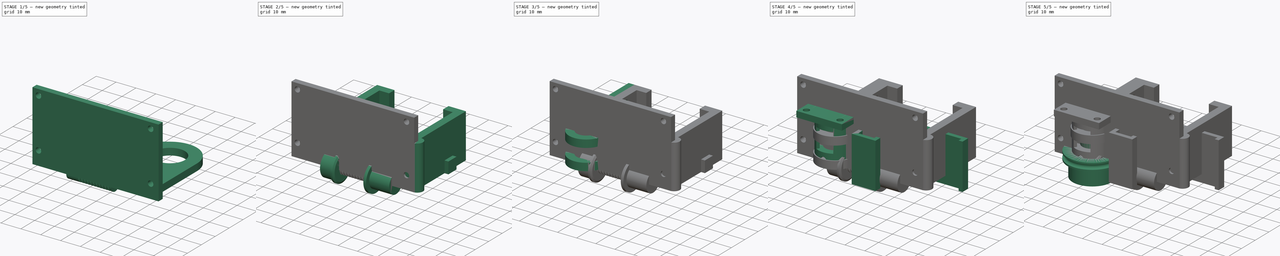
[diagram: build sequence overview — one tinted view per stage of 5, left to right]
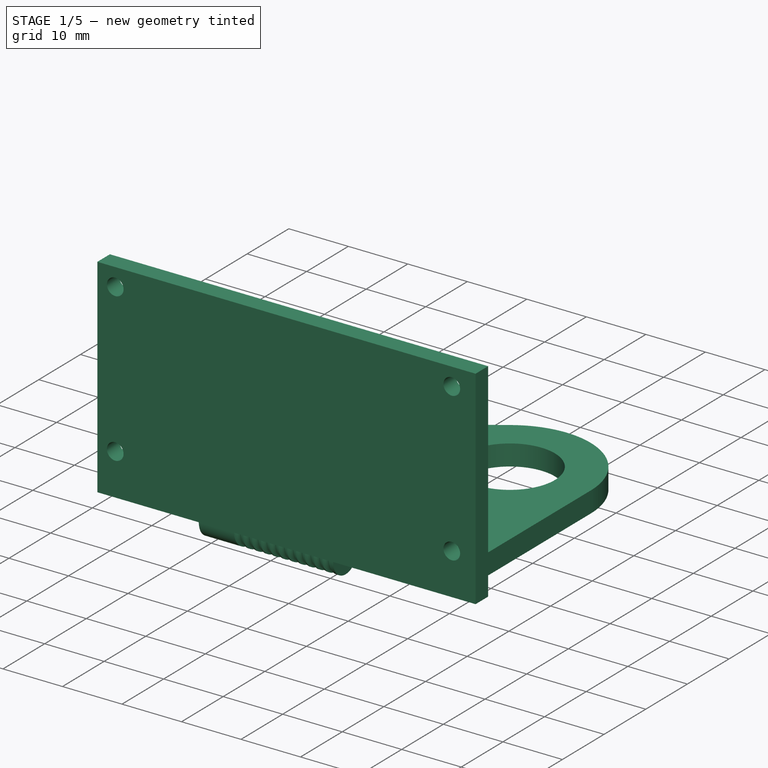
[diagram: stage 1 of 5 — iso view after this stage's code; geometry added in this stage tinted green]
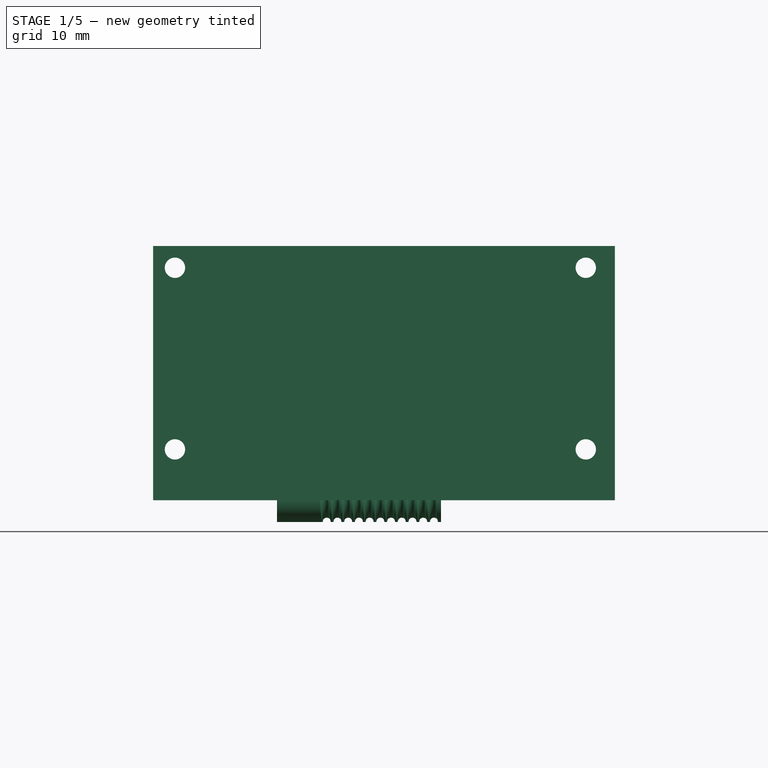
[diagram: stage 1 of 5 — front view after this stage's code; geometry added in this stage tinted green]
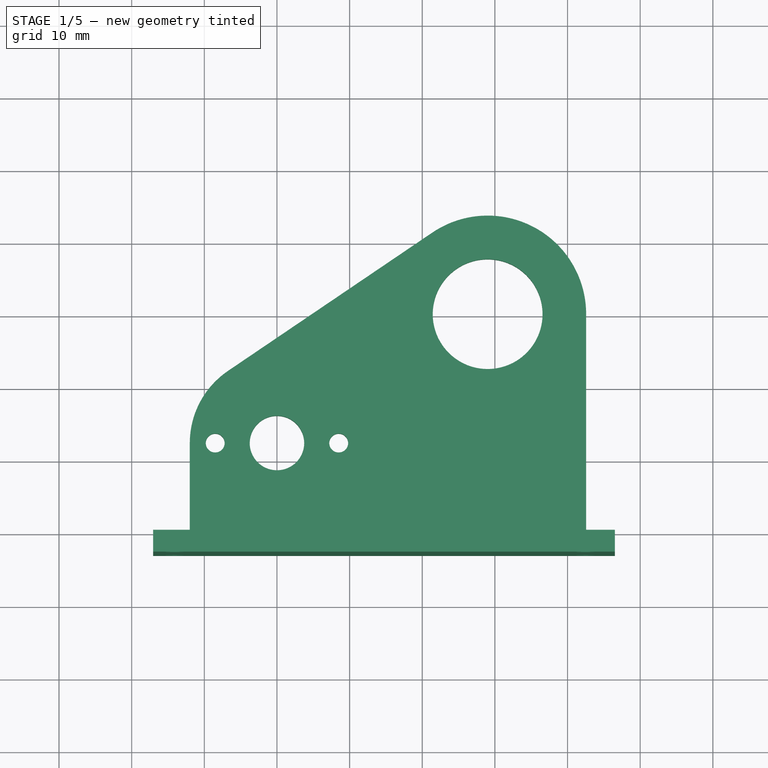
[diagram: stage 1 of 5 — top view after this stage's code; geometry added in this stage tinted green]
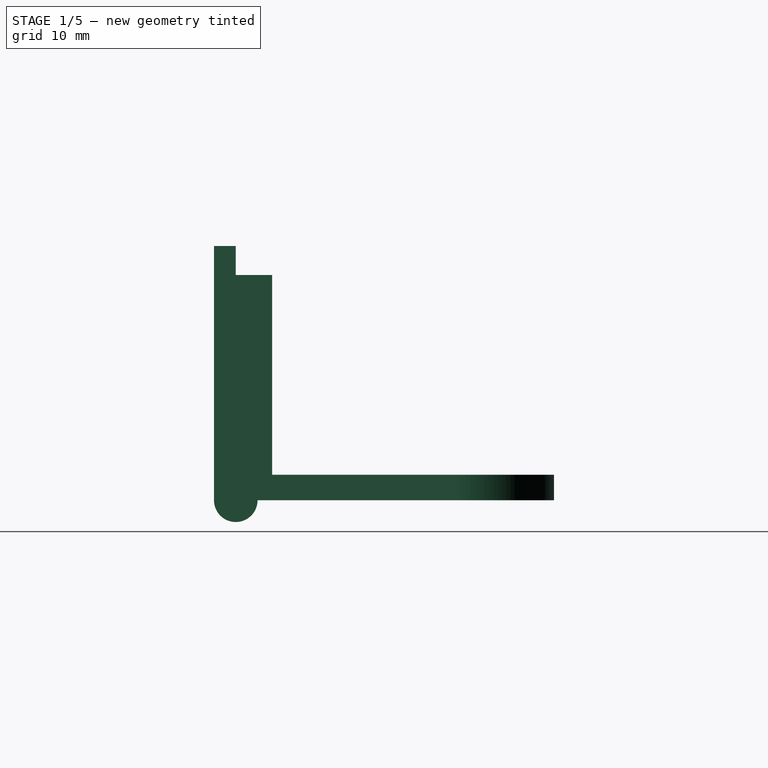
[diagram: stage 1 of 5 — right view after this stage's code; geometry added in this stage tinted green]
FCSTD DOCUMENT  (FreeCAD 1.0R39109 (Git))
Label: windowVerticalBlindControlV1
License: All rights reserved
LicenseURL: http://en.wikipedia.org/wiki/All_rights_reserved
objects: Sketcher::SketchObject×34, PartDesign::Pad×20, PartDesign::Body×11, PartDesign::Pocket×8, PartDesign::Groove×3, PartDesign::Revolution×2, App::VarSet×1, PartDesign::SubtractiveHelix×1
note: 181 computed .brp shape members not serialized (recipe doc carries the construction recipe); baked Part::Feature solids carry a one-line shape summary decoded from their .brp

FEATURE [App::VarSet] VarSet
  Base_motorScrewDistR = 8.5
  baseKafScrewStart = 6
  bearingHoleRadius = 7.56
  bearingR = 5.03
  bigReducerR = 30
  blindBottomAttachementLen = 23
  blindTopHeight = 20
  blindTopNotchLen = 8
  bottomBlindAttachementThickness = 4
  bottomBlindHeight = 28
  bottomBlindWidth = 38
  bottomKafSideWidth = 6
  bottomKafThickness = 3
  bottomWindowWoodGap = 17.2
  debugOutsideR = 10
  m3ScrewLose = 1.6
  m3ScrewTight = 1.4
  mortorMountScrewToScrewHeight = 25
  motorCapstanDriveRodSmallR = 3
  motorCapstanGroveR = 0.6
  motorCenterPopupR = 3.75
  motorMountScrewCenter = 16.5
  motorMountScrewHoleToHoleDist = 6
  motorMountWallThickness = 5
  motorR = 12.5
  motorRodR = 1.15
  motorScrewHoleR = 1.3
  motorShaftR = 1.15
  motortMountGearBetween = 30
  outerBearingR = 7.5
  screwToSide = 3
  tighenerRodR = 5
  tightMargin = 0.0125
  tightenerAttachementBaseWidth = 23
  tightenerAttachementToScrew = 3
  tightenerAttachmentBaseHeight = 23
  tightenerBaseHeight = 8
  tightenerBodyLen = 19
  tightenerBodyTotalLen = 21
  tightenerCenterOpeningWidth = 10
  tightenerCentralChamberHeight = 2
  tightenerHoleR = 5.0125
  tightenerInnerChamberHeight = 8.0125
  tightenerOpeningCenter = 12
  tightenerOuterR = 8.5
  tightenerScrewSideLen = 6
  topRodR = 5.03
  topRollerCenterGap = 7
  topRollerEquipmentBaseHeight = 5
  topRollerEquipmentBaseWidth = 10
  topRollerOutsidePad = 15
  topRollerR = 12.5
  topRollerSep = 1.5
  topRollerThickness = 2
  topRollerTopPad = 4
  topRollerTotalWidth = 15
  topRollerWidth = 4
  topThickNess = 4
  veryTightMargin = 0.001
  expr: blindBottomAttachementLen = tightenerAttachementBaseWidth
  expr: m3ScrewLose = m3ScrewTight + 0.2 mm
  expr: motorMountScrewCenter = motorR + 4 mm
  expr: outerBearingR = 15 / 2
  expr: tightenerBodyTotalLen = tightenerBodyLen + 2 mm
  expr: tightenerHoleR = tighenerRodR + tightMargin
  expr: tightenerInnerChamberHeight = tightenerHoleR + 3 mm
  expr: topRollerR = outerBearingR + 5 mm
  expr: topRollerTotalWidth = topRollerCenterGap + topThickNess * 2
FEATURE [Sketcher::SketchObject] Sketch
  ArcFitTolerance = 1e-06
  AttachmentSupport = -> [XY_Plane]
  FullyConstrained = false
  MakeInternals = false
  MapMode = 5
  expr: Constraints[0] = VarSet.motorScrewHoleR
  expr: Constraints[11] = VarSet.bigReducerR + VarSet.motorCapstanDriveRodSmallR + 1 mm
  expr: Constraints[13] = VarSet.bigReducerR
  expr: Constraints[1] = VarSet.motorScrewHoleR
  expr: Constraints[2] = VarSet.motorCenterPopupR
  expr: Constraints[32] = VarSet.bearingHoleRadius
  expr: Constraints[34] = VarSet.motorR
  expr: Constraints[39] = VarSet.Base_motorScrewDistR
  expr: Constraints[40] = VarSet.Base_motorScrewDistR
  expr: Constraints[42] = VarSet.bearingHoleRadius + 6 mm
  sketch-geometry (17):
    g0: Circle CenterX=0 CenterY=12.5 CenterZ=0 NormalX=0 NormalY=0 NormalZ=1 AngleXU=0 Radius=3.75
    g1: Circle CenterX=-8.5 CenterY=12.5 CenterZ=0 NormalX=0 NormalY=0 NormalZ=1 AngleXU=0 Radius=1.3
    g2: Circle CenterX=8.5 CenterY=12.5 CenterZ=0 NormalX=0 NormalY=0 NormalZ=1 AngleXU=0 Radius=1.3
    g3: LineSegment [constr] StartX=-13.8476 StartY=12.5 StartZ=0 EndX=16.7983 EndY=12.5 EndZ=0
    g4: LineSegment StartX=-12 StartY=12.5 StartZ=0 EndX=-12 EndY=0 EndZ=0
    g5: Circle [constr] CenterX=0 CenterY=12.5 CenterZ=0 NormalX=0 NormalY=0 NormalZ=1 AngleXU=0 Radius=34
    g6: Circle [constr] CenterX=29 CenterY=30.2482 CenterZ=0 NormalX=0 NormalY=0 NormalZ=1 AngleXU=0 Radius=30
    g7: LineSegment [constr] StartX=29 StartY=30.2482 StartZ=0 EndX=0 EndY=30.2482 EndZ=0
    g8: LineSegment [constr] StartX=0 StartY=30.2482 StartZ=0 EndX=0 EndY=0 EndZ=0
    g9: LineSegment [constr] StartX=0 StartY=0 StartZ=0 EndX=29 EndY=0 EndZ=0
    g10: LineSegment [constr] StartX=29 StartY=0 StartZ=0 EndX=29 EndY=30.2482 EndZ=0
    g11: LineSegment StartX=-6.72711 StartY=22.4371 StartZ=0 EndX=21.3984 EndY=41.4772 EndZ=0
    g12: LineSegment StartX=42.56 StartY=30.2482 StartZ=0 EndX=42.56 EndY=0 EndZ=0
    g13: ArcOfCircle CenterX=29 CenterY=30.2482 CenterZ=0 NormalX=0 NormalY=0 NormalZ=1 AngleXU=0 Radius=13.56 StartAngle=0 EndAngle=2.1659
    g14: ArcOfCircle CenterX=0 CenterY=12.5 CenterZ=0 NormalX=0 NormalY=0 NormalZ=1 AngleXU=0 Radius=12 StartAngle=2.1659 EndAngle=3.14159
    g15: LineSegment StartX=-12 StartY=0 StartZ=0 EndX=42.56 EndY=0 EndZ=0
    g16: Circle CenterX=29 CenterY=30.2482 CenterZ=0 NormalX=0 NormalY=0 NormalZ=1 AngleXU=0 Radius=7.56
  constraints (44):
    c: Radius(g2) = 1.3
    c: Radius(g1) = 1.3
    c: Radius(g0) = 3.75
    c: Horizontal(g3)
    c: PointOnObject(g1,g3)
    c: PointOnObject(g2,g3)
    c: Vertical(g4)
    c: PointOnObject(g4,g-1)
    c: PointOnObject(g4,g14)
    c: PointOnObject(g4,g3)
    c: PointOnObject(g14,g3)
    c: Radius(g5) = 34
    c: PointOnObject(g6,g5)
    c: Radius(g6) = 30
    c: Coincident(g7,g8)
    c: Coincident(g8,g9)
    c: Coincident(g9,g10)
    c: Coincident(g10,g7)
    c: Horizontal(g7)
    c: Horizontal(g9)
    c: Vertical(g8)
    c: Vertical(g10)
    c: Coincident(g7,g6)
    c: Coincident(g8,g-1)
    c: DistanceX(g7,g7) = 29
    c: Vertical(g12)
    c: Tangent(g13,g12) = 1.5708
    c: Tangent(g14,g11) = 1.5708
    c: Coincident(g15,g4)
    c: Coincident(g15,g12)
    c: Horizontal(g15)
    c: Coincident(g16,g6)
    c: Radius(g16) = 7.56
    c: PointOnObject(g0,g8)
    c: DistanceY(g8,g0) = 12.5
    c: PointOnObject(g0,g3)
    c: Coincident(g5,g0)
    c: Coincident(g13,g6)
    c: Coincident(g14,g0)
    c: DistanceX(g1,g0) = 8.5
    c: DistanceX(g0,g2) = 8.5
    c: Radius(g14) = 12
    c: Radius(g13) = 13.56
    c: Tangent(g11,g13) = 1.5708
FEATURE [PartDesign::Pad] Pad
  Direction = (0,0,1)
  Length = 3.5
  Length2 = 10
  Profile = -> Sketch
  ReferenceAxis = -> Sketch [N_Axis]
  Suppressed = false
  Type = 0
FEATURE [PartDesign::Body] Body009  label="Body009BottomKaf"
  AllowCompound = false
  Group = -> [Sketch024,Pad017,Sketch025,Pocket005]
  Origin = -> Origin009
  Tip = -> Pocket005
FEATURE [Sketcher::SketchObject] Sketch026
  ArcFitTolerance = 1e-06
  AttachmentSupport = -> [XZ_Plane]
  ExternalGeometry = -> [Sketch]
  FullyConstrained = false
  MakeInternals = false
  MapMode = 5
  Placement = pos=(0,0,0) rot=(1,0,0;1.5708rad)
  expr: Constraints[15] = VarSet.screwToSide
  expr: Constraints[23] = VarSet.m3ScrewTight
  expr: Constraints[7] = VarSet.mortorMountScrewToScrewHeight
  sketch-geometry (16):
    g0: LineSegment [constr] StartX=-14.0416 StartY=7 StartZ=0 EndX=42.5098 EndY=7 EndZ=0
    g1: LineSegment [constr] StartX=42.5098 StartY=7 StartZ=0 EndX=42.5098 EndY=32 EndZ=0
    g2: LineSegment [constr] StartX=42.5098 StartY=32 StartZ=0 EndX=-14.0416 EndY=32 EndZ=0
    g3: LineSegment [constr] StartX=-14.0416 StartY=32 StartZ=0 EndX=-14.0416 EndY=7 EndZ=0
    g4: LineSegment StartX=-17.0416 StartY=35 StartZ=0 EndX=-17.0416 EndY=0 EndZ=0
    g5: LineSegment StartX=-17.0416 StartY=0 StartZ=0 EndX=46.5098 EndY=0 EndZ=0
    g6: LineSegment StartX=46.5098 StartY=0 StartZ=0 EndX=46.5098 EndY=35 EndZ=0
    g7: LineSegment StartX=46.5098 StartY=35 StartZ=0 EndX=-17.0416 EndY=35 EndZ=0
    g8: Circle CenterX=-14.0416 CenterY=32 CenterZ=0 NormalX=0 NormalY=0 NormalZ=1 AngleXU=0 Radius=1.4
    g9: Circle CenterX=-14.0416 CenterY=7 CenterZ=0 NormalX=0 NormalY=0 NormalZ=1 AngleXU=0 Radius=1.4
    g10: Circle CenterX=42.5098 CenterY=32 CenterZ=0 NormalX=0 NormalY=0 NormalZ=1 AngleXU=0 Radius=1.4
    g11: Circle CenterX=42.5098 CenterY=7 CenterZ=0 NormalX=0 NormalY=0 NormalZ=1 AngleXU=0 Radius=1.4
    g12: LineSegment [constr] StartX=-14.0416 StartY=32 StartZ=0 EndX=-14.0416 EndY=7 EndZ=0
    g13: LineSegment [constr] StartX=-14.0416 StartY=7 StartZ=0 EndX=42.5098 EndY=7 EndZ=0
    g14: LineSegment [constr] StartX=42.5098 StartY=7 StartZ=0 EndX=42.5098 EndY=32 EndZ=0
    g15: LineSegment [constr] StartX=42.5098 StartY=32 StartZ=0 EndX=-14.0416 EndY=32 EndZ=0
  constraints (39):
    c: Coincident(g0,g1)
    c: Coincident(g1,g2)
    c: Coincident(g2,g3)
    c: Coincident(g3,g0)
    c: Horizontal(g2)
    c: Vertical(g1)
    c: Vertical(g3)
    c: DistanceY(g3,g3) = 25
    c: Coincident(g4,g5)
    c: Coincident(g5,g6)
    c: Coincident(g6,g7)
    c: Coincident(g7,g4)
    c: Vertical(g4)
    c: Vertical(g6)
    c: Horizontal(g7)
    c: DistanceY(g2,g4) = 3
    c: Coincident(g8,g2)
    c: Coincident(g9,g0)
    c: Coincident(g10,g1)
    c: Coincident(g11,g0)
    c: Equal(g8,g9)
    c: Equal(g8,g10)
    c: Equal(g10,g11)
    c: Radius(g8) = 1.4
    c: Coincident(g12,g13)
    c: Coincident(g13,g14)
    c: Coincident(g14,g15)
    c: Coincident(g15,g12)
    c: Vertical(g14)
    c: Horizontal(g13)
    c: Horizontal(g15)
    c: Coincident(g12,g2)
    c: Coincident(g13,g0)
    c: DistanceY(g4,g0) = 7
    c: Coincident(g0,g12)
    c: PointOnObject(g5,g-1)
    c: PointOnObject(g4,g-1)
    c: DistanceX(g4,g0) = 3
    c: DistanceX(g0,g5) = 4
FEATURE [PartDesign::Pad] Pad018
  BaseFeature = -> Pad
  Direction = (0,-1,2e-16)
  Length = 3
  Length2 = 10
  Profile = -> Sketch026
  ReferenceAxis = -> Sketch026 [N_Axis]
  Suppressed = false
  Type = 0
FEATURE [Sketcher::SketchObject] Sketch027
  ArcFitTolerance = 1e-06
  AttachmentSupport = -> [XY_Plane]
  FullyConstrained = true
  MakeInternals = false
  MapMode = 5
  expr: Constraints[14] = VarSet.debugOutsideR * 2
  expr: Constraints[16] = VarSet.bigReducerR + VarSet.motorCapstanDriveRodSmallR + 1 mm
  expr: Constraints[2] = VarSet.motorR
  sketch-geometry (6):
    g0: ArcOfCircle CenterX=0 CenterY=12.5 CenterZ=0 NormalX=0 NormalY=0 NormalZ=1 AngleXU=0 Radius=12.5 StartAngle=3.78509 EndAngle=5.63968
    g1: LineSegment StartX=-10 StartY=5 StartZ=0 EndX=-10 EndY=0 EndZ=0
    g2: LineSegment StartX=-10 StartY=0 StartZ=0 EndX=10 EndY=0 EndZ=0
    g3: LineSegment StartX=10 StartY=0 StartZ=0 EndX=10 EndY=5 EndZ=0
    g4: LineSegment [constr] StartX=-10 StartY=5 StartZ=0 EndX=10 EndY=5 EndZ=0
    g5: Circle [constr] CenterX=0 CenterY=12.5 CenterZ=0 NormalX=0 NormalY=0 NormalZ=1 AngleXU=0 Radius=34
  constraints (17):
    c: PointOnObject(g0,g-2)
    c: Tangent(g0,g-1)
    c: Radius(g0) = 12.5
    c: PointOnObject(g1,g-1)
    c: Vertical(g1)
    c: Coincident(g2,g1)
    c: PointOnObject(g2,g-1)
    c: Coincident(g3,g2)
    c: Vertical(g3)
    c: Coincident(g4,g1)
    c: Coincident(g4,g3)
    c: Horizontal(g4)
    c: Coincident(g0,g3)
    c: Coincident(g0,g1)
    c: DistanceX(g4,g4) = 20
    c: Coincident(g5,g0)
    c: Radius(g5) = 34
FEATURE [PartDesign::Pad] Pad019
  BaseFeature = -> Pad018
  Direction = (0,0,1)
  Length = 31
  Length2 = 10
  Profile = -> Sketch027
  ReferenceAxis = -> Sketch027 [N_Axis]
  Suppressed = false
  Type = 0
  expr: Length = VarSet.mortorMountScrewToScrewHeight + VarSet.screwToSide * 2
FEATURE [Sketcher::SketchObject] Sketch028
  ArcFitTolerance = 1e-06
  AttachmentSupport = -> [XY_Plane010]
  FullyConstrained = false
  MakeInternals = false
  MapMode = 5
  expr: Constraints[69] = VarSet.bearingR
  sketch-geometry (27):
    g0: LineSegment StartX=0 StartY=6.25 StartZ=0 EndX=0 EndY=0 EndZ=0
    g1: LineSegment StartX=0 StartY=0 StartZ=0 EndX=35 EndY=0 EndZ=0
    g2: LineSegment StartX=6 StartY=6.25 StartZ=0 EndX=0 EndY=6.25 EndZ=0
    g3: LineSegment StartX=24.5774 StartY=5.03 StartZ=0 EndX=24.5774 EndY=7.25 EndZ=0
    g4: LineSegment [constr] StartX=0 StartY=6.25 StartZ=0 EndX=21.0441 EndY=6.25 EndZ=0
    g5: LineSegment [constr] StartX=22.5774 StartY=6.25 StartZ=0 EndX=22.5774 EndY=1.6055 EndZ=0
    g6: LineSegment StartX=22.5774 StartY=6.25 StartZ=0 EndX=23.1547 EndY=7.25 EndZ=0
    g7: LineSegment StartX=23.1547 StartY=7.25 StartZ=0 EndX=24.5774 EndY=7.25 EndZ=0
    g8: LineSegment StartX=6 StartY=6.25 StartZ=0 EndX=6 EndY=7.25 EndZ=0
    g9: LineSegment StartX=6 StartY=7.25 StartZ=0 EndX=7 EndY=7.25 EndZ=0
    g10: LineSegment StartX=7 StartY=7.25 StartZ=0 EndX=7.57735 EndY=6.25 EndZ=0
    g11: LineSegment [constr] StartX=24.5774 StartY=7.25 StartZ=0 EndX=24.5774 EndY=6.25 EndZ=0
    g12: LineSegment [constr] StartX=7 StartY=7.25 StartZ=0 EndX=7 EndY=6.25 EndZ=0
    g13: LineSegment [constr] StartX=24.5774 StartY=6.25 StartZ=0 EndX=21.0441 EndY=6.25 EndZ=0
    g14: LineSegment [constr] StartX=21.0441 StartY=6.25 StartZ=0 EndX=21.0441 EndY=7.25 EndZ=0
    g15: LineSegment [constr] StartX=21.0441 StartY=7.25 StartZ=0 EndX=24.5774 EndY=7.25 EndZ=0
    g16: LineSegment [constr] StartX=24.5774 StartY=7.25 StartZ=0 EndX=24.5774 EndY=6.25 EndZ=0
    g17: LineSegment [constr] StartX=7 StartY=7.25 StartZ=0 EndX=24.5774 EndY=7.25 EndZ=0
    g18: LineSegment [constr] StartX=0 StartY=0 StartZ=0 EndX=0 EndY=6.25 EndZ=0
    g19: LineSegment [constr] StartX=0 StartY=6.25 StartZ=0 EndX=-7.16184 EndY=6.25 EndZ=0
    g20: LineSegment [constr] StartX=-7.16184 StartY=6.25 StartZ=0 EndX=-7.16184 EndY=0 EndZ=0
    g21: LineSegment [constr] StartX=-7.16184 StartY=0 StartZ=0 EndX=0 EndY=0 EndZ=0
    g22: LineSegment StartX=7.57735 StartY=6.25 StartZ=0 EndX=7.57735 EndY=1.53921 EndZ=0
    g23: LineSegment StartX=7.57735 StartY=1.53921 StartZ=0 EndX=22.5774 EndY=1.53921 EndZ=0
    g24: LineSegment StartX=22.5774 StartY=1.53921 StartZ=0 EndX=22.5774 EndY=6.25 EndZ=0
    g25: LineSegment StartX=24.5774 StartY=5.03 StartZ=0 EndX=35 EndY=5.03 EndZ=0
    g26: LineSegment StartX=35 StartY=5.03 StartZ=0 EndX=35 EndY=0 EndZ=0
  constraints (71):
    c: Coincident(g0,g1)
    c: Coincident(g2,g0)
    c: Vertical(g0)
    c: Horizontal(g1)
    c: Horizontal(g2)
    c: PointOnObject(g0,g-2)
    c: DistanceX(g2,g2) = 6
    c: Vertical(g3)
    c: Coincident(g4,g0)
    c: Horizontal(g4)
    c: Vertical(g5)
    c: Coincident(g6,g5)
    c: Coincident(g7,g6)
    c: Coincident(g7,g3)
    c: Horizontal(g7)
    c: Angle(g6,g-1) = 2.0944
    c: Coincident(g8,g2)
    c: Vertical(g8)
    c: Coincident(g9,g8)
    c: Horizontal(g9)
    c: Coincident(g10,g9)
    c: PointOnObject(g10,g4)
    c: Angle(g10,g-1) = 1.0472
    c: DistanceX(g9,g9) = 1
    c: Coincident(g11,g3)
    c: PointOnObject(g11,g3)
    c: PointOnObject(g11,g4)
    c: Coincident(g12,g9)
    c: PointOnObject(g12,g4)
    c: Vertical(g12)
    c: Coincident(g13,g14)
    c: Coincident(g14,g15)
    c: Coincident(g15,g16)
    c: Coincident(g16,g13)
    c: Horizontal(g15)
    c: Vertical(g14)
    c: Coincident(g13,g11)
    c: Coincident(g15,g3)
    c: Coincident(g17,g9)
    c: Coincident(g17,g3)
    c: Horizontal(g17)
    c: DistanceX(g10,g5) = 15
    c: Coincident(g18,g19)
    c: Coincident(g19,g20)
    c: Coincident(g20,g21)
    c: Coincident(g21,g18)
    c: Vertical(g20)
    c: Horizontal(g19)
    c: Horizontal(g21)
    c: Coincident(g18,g-1)
    c: Coincident(g18,g0)
    c: DistanceY(g20,g20) = 6.25
    c: Coincident(g22,g10)
    c: Vertical(g22)
    c: Coincident(g23,g22)
    c: PointOnObject(g23,g5)
    c: Horizontal(g23)
    c: Coincident(g24,g23)
    c: Coincident(g24,g5)
    c: PointOnObject(g1,g-1)
    c: Coincident(g13,g4)
    c: PointOnObject(g5,g13)
    c: DistanceY(g12,g12) = 1
    c: Horizontal(g25)
    c: Coincident(g26,g25)
    c: Vertical(g26)
    c: Coincident(g1,g26)
    c: DistanceX(g5,g11) = 2
    c: Coincident(g25,g3)
    c: DistanceY(g26,g26) = 5.03
    c: DistanceX(g1,g1) = 35
FEATURE [Sketcher::SketchObject] Sketch029
  ArcFitTolerance = 1e-06
  AttachmentSupport = -> [XY_Plane010]
  FullyConstrained = true
  MakeInternals = false
  MapMode = 5
  expr: Constraints[1] = VarSet.m3ScrewTight
  expr: Constraints[2] = VarSet.screwToSide
  sketch-geometry (1):
    g0: Circle CenterX=3 CenterY=0 CenterZ=0 NormalX=0 NormalY=0 NormalZ=1 AngleXU=0 Radius=1.4
  constraints (3):
    c: PointOnObject(g0,g-1)
    c: Radius(g0) = 1.4
    c: DistanceX(g-1,g0) = 3
FEATURE [Sketcher::SketchObject] Sketch030
  ArcFitTolerance = 1e-06
  AttachmentSupport = -> [XZ_Plane010]
  FullyConstrained = false
  MakeInternals = false
  MapMode = 5
  Placement = pos=(0,0,0) rot=(1,0,0;1.5708rad)
  expr: Constraints[6] = VarSet.motorCapstanDriveRodSmallR
  sketch-geometry (8):
    g0: LineSegment StartX=22.58 StartY=3 StartZ=0 EndX=0 EndY=3 EndZ=0
    g1: LineSegment [constr] StartX=0 StartY=3 StartZ=0 EndX=22.58 EndY=3 EndZ=0
    g2: LineSegment [constr] StartX=0 StartY=3 StartZ=0 EndX=-7.16184 EndY=3 EndZ=0
    g3: LineSegment [constr] StartX=-7.16184 StartY=3 StartZ=0 EndX=-7.16184 EndY=0 EndZ=0
    g4: LineSegment [constr] StartX=-7.16184 StartY=0 StartZ=0 EndX=0 EndY=0 EndZ=0
    g5: LineSegment StartX=0 StartY=3 StartZ=0 EndX=0 EndY=0 EndZ=0
    g6: LineSegment StartX=0 StartY=0 StartZ=0 EndX=22.58 EndY=0 EndZ=0
    g7: LineSegment StartX=22.58 StartY=0 StartZ=0 EndX=22.58 EndY=3 EndZ=0
  constraints (20):
    c: Horizontal(g0)
    c: Coincident(g2,g3)
    c: Coincident(g3,g4)
    c: Vertical(g3)
    c: Horizontal(g2)
    c: Horizontal(g4)
    c: DistanceY(g3,g3) = 3
    c: Coincident(g5,g0)
    c: Vertical(g5)
    c: Coincident(g6,g5)
    c: Horizontal(g6)
    c: Coincident(g7,g6)
    c: Coincident(g7,g0)
    c: Vertical(g7)
    c: Coincident(g0,g1)
    c: Coincident(g0,g2)
    c: Coincident(g4,g-1)
    c: Coincident(g0,g1)
    c: DistanceX(g0,g0) = 22.58
    c: Coincident(g5,g4)
FEATURE [PartDesign::Revolution] Revolution001
  Angle = 360
  Angle2 = 60
  Axis = (1,0,0)
  Base = (0,0,0)
  Placement = pos=(0,0,0) rot=(1,0,0;1.5708rad)
  Profile = -> Sketch030
  ReferenceAxis = -> Sketch030 [H_Axis]
  Suppressed = false
  Type = 0
FEATURE [Sketcher::SketchObject] Sketch031
  ArcFitTolerance = 1e-06
  AttachmentSupport = -> [XY_Plane010]
  ExternalGeometry = -> [Revolution001]
  FullyConstrained = true
  MakeInternals = false
  MapMode = 5
  expr: Constraints[8] = VarSet.motorCapstanGroveR
  sketch-geometry (3):
    g0: LineSegment [constr] StartX=0 StartY=3 StartZ=0 EndX=22.58 EndY=3 EndZ=0
    g1: ArcOfCircle CenterX=21.98 CenterY=3 CenterZ=0 NormalX=0 NormalY=0 NormalZ=1 AngleXU=0 Radius=0.6 StartAngle=3.14159 EndAngle=6.28319
    g2: LineSegment StartX=21.38 StartY=3 StartZ=0 EndX=22.58 EndY=3 EndZ=0
  constraints (9):
    c: PointOnObject(g0,g-2)
    c: Horizontal(g0)
    c: Coincident(g0,g-3)
    c: PointOnObject(g1,g0)
    c: PointOnObject(g2,g0)
    c: Coincident(g2,g0)
    c: Coincident(g1,g0)
    c: Coincident(g2,g1)
    c: Radius(g1) = 0.6
FEATURE [PartDesign::SubtractiveHelix] SubtractiveHelix
  Angle = 0
  Axis = (1,0,0)
  Base = (0,0,0)
  BaseFeature = -> Revolution001
  Growth = 0
  HasBeenEdited = true
  Height = 16
  LeftHanded = false
  Mode = 0
  Outside = false
  Pitch = 1.4758
  Placement = pos=(0,0,0) rot=(1,0,0;1.5708rad)
  Profile = -> Sketch031
  ReferenceAxis = -> Sketch031 [H_Axis]
  Reversed = true
  Suppressed = false
  Tolerance = 0.1
  Turns = 10.8416
FEATURE [PartDesign::Body] Body010  label="BodyMotorRodConnector"
  AllowCompound = false
  Group = -> [Sketch028,Sketch029,Sketch030,Revolution001,Sketch031,SubtractiveHelix,Revolution,Pocket006,Sketch032,Pocket007]
  Origin = -> Origin010
  Tip = -> Pocket007
FEATURE [Sketcher::SketchObject] Sketch033
  ArcFitTolerance = 1e-06
  AttachmentSupport = -> [XZ_Plane]
  FullyConstrained = false
  MakeInternals = false
  MapMode = 5
  Placement = pos=(0,0,0) rot=(1,0,0;1.5708rad)
  expr: Constraints[18] = VarSet.motortMountGearBetween
  expr: Constraints[19] = VarSet.motorMountWallThickness
  expr: Constraints[20] = VarSet.motorMountWallThickness
  expr: Constraints[21] = VarSet.motorMountWallThickness
  sketch-geometry (8):
    g0: LineSegment StartX=-27.1295 StartY=0 StartZ=0 EndX=-27.1295 EndY=-35 EndZ=0
    g1: LineSegment StartX=-27.1295 StartY=-35 StartZ=0 EndX=33.8718 EndY=-35 EndZ=0
    g2: LineSegment StartX=33.8718 StartY=-35 StartZ=0 EndX=33.8718 EndY=0 EndZ=0
    g3: LineSegment StartX=33.8718 StartY=0 StartZ=0 EndX=-27.1295 EndY=0 EndZ=0
    g4: LineSegment [constr] StartX=-22.1295 StartY=0 StartZ=0 EndX=-22.1295 EndY=-30 EndZ=0
    g5: LineSegment [constr] StartX=-22.1295 StartY=-30 StartZ=0 EndX=28.8718 EndY=-30 EndZ=0
    g6: LineSegment [constr] StartX=28.8718 StartY=-30 StartZ=0 EndX=28.8718 EndY=0 EndZ=0
    g7: LineSegment [constr] StartX=28.8718 StartY=0 StartZ=0 EndX=-22.1295 EndY=0 EndZ=0
  constraints (22):
    c: Coincident(g0,g1)
    c: Coincident(g1,g2)
    c: Coincident(g2,g3)
    c: Coincident(g3,g0)
    c: Vertical(g0)
    c: Vertical(g2)
    c: Horizontal(g1)
    c: Horizontal(g3)
    c: PointOnObject(g0,g-1)
    c: Coincident(g4,g5)
    c: Coincident(g5,g6)
    c: Coincident(g6,g7)
    c: Coincident(g7,g4)
    c: Vertical(g4)
    c: Vertical(g6)
    c: Horizontal(g5)
    c: Horizontal(g7)
    c: PointOnObject(g4,g3)
    c: DistanceY(g4,g4) = 30
    c: DistanceX(g0,g4) = 5
    c: DistanceY(g0,g4) = 5
    c: DistanceX(g5,g1) = 5
FEATURE [PartDesign::Pad] Pad020
  BaseFeature = -> Pad019
  Direction = (0,-1,2e-16)
  Length = 3
  Length2 = 10
  Profile = -> Sketch033
  ReferenceAxis = -> Sketch033 [N_Axis]
  Suppressed = true
  Type = 0
FEATURE [Sketcher::SketchObject] Sketch034
  ArcFitTolerance = 1e-06
  AttachmentOffset = pos=(0,0,-30) rot=(0,0,1;0rad)
  AttachmentSupport = -> [XY_Plane]
  ExternalGeometry = -> [Pad]
  FullyConstrained = true
  MakeInternals = false
  MapMode = 5
  Placement = pos=(0,0,-30) rot=(0,0,1;0rad)
  expr: .AttachmentOffset.Base.z = -VarSet.motortMountGearBetween
  expr: Constraints[5] = VarSet.bearingHoleRadius
  sketch-geometry (9):
    g0: LineSegment StartX=-12 StartY=0 StartZ=0 EndX=42.56 EndY=0 EndZ=0
    g1: LineSegment StartX=42.56 StartY=0 StartZ=0 EndX=42.56 EndY=30.2482 EndZ=0
    g2: Circle [constr] CenterX=0 CenterY=12.5 CenterZ=0 NormalX=0 NormalY=0 NormalZ=1 AngleXU=0 Radius=7.56
    g3: Circle CenterX=0 CenterY=12.5 CenterZ=0 NormalX=0 NormalY=0 NormalZ=1 AngleXU=0 Radius=7.56
    g4: Circle CenterX=29 CenterY=30.2482 CenterZ=0 NormalX=0 NormalY=0 NormalZ=1 AngleXU=0 Radius=7.56
    g5: LineSegment StartX=-12 StartY=0 StartZ=0 EndX=-12 EndY=12.5 EndZ=0
    g6: ArcOfCircle CenterX=29 CenterY=30.2482 CenterZ=0 NormalX=0 NormalY=0 NormalZ=1 AngleXU=0 Radius=13.56 StartAngle=1e-16 EndAngle=2.1659
    g7: ArcOfCircle CenterX=0 CenterY=12.5 CenterZ=0 NormalX=0 NormalY=0 NormalZ=1 AngleXU=0 Radius=12 StartAngle=2.1659 EndAngle=3.14159
    g8: LineSegment StartX=-6.72711 StartY=22.4371 StartZ=0 EndX=21.3984 EndY=41.4772 EndZ=0
  constraints (22):
    c: Coincident(g0,g1)
    c: Horizontal(g0)
    c: Vertical(g1)
    c: PointOnObject(g0,g-1)
    c: PointOnObject(g2,g-2)
    c: Radius(g2) = 7.56
    c: Coincident(g3,g2)
    c: Equal(g3,g2)
    c: Coincident(g4,g-4)
    c: Equal(g4,g-4)
    c: Coincident(g5,g0)
    c: Coincident(g5,g-6)
    c: Vertical(g5)
    c: Coincident(g6,g4)
    c: Coincident(g1,g-5)
    c: Coincident(g7,g2)
    c: Coincident(g7,g5)
    c: Coincident(g7,g-7)
    c: Coincident(g6,g-7)
    c: Coincident(g6,g1)
    c: Coincident(g8,g7)
    c: Coincident(g8,g6)
FEATURE [PartDesign::Pad] Pad021
  BaseFeature = -> Pad020
  Direction = (0,0,1)
  Length = 5
  Length2 = 10
  Profile = -> Sketch034
  ReferenceAxis = -> Sketch034 [N_Axis]
  Reversed = true
  Suppressed = true
  Type = 0
  expr: Length = VarSet.motorMountWallThickness
FEATURE [PartDesign::Body] Body  label="BodyMotorMount"
  AllowCompound = false
  Group = -> [Sketch,Pad,Sketch026,Pad018,Sketch027,Pad019,Sketch033,Pad020,Sketch034,Pad021]
  Origin = -> Origin
  Tip = -> Pad021
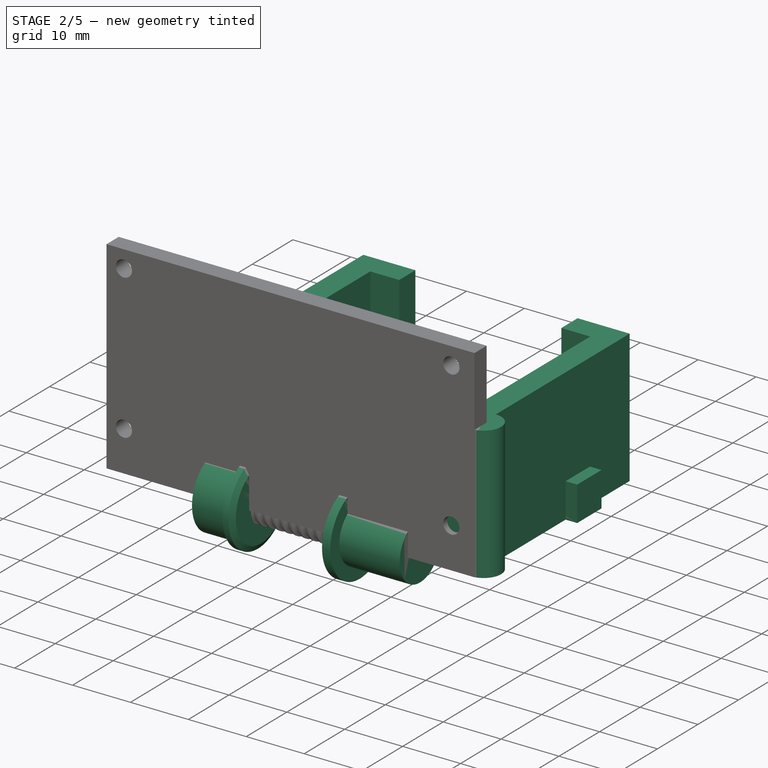
[diagram: stage 2 of 5 — iso view after this stage's code; geometry added in this stage tinted green]
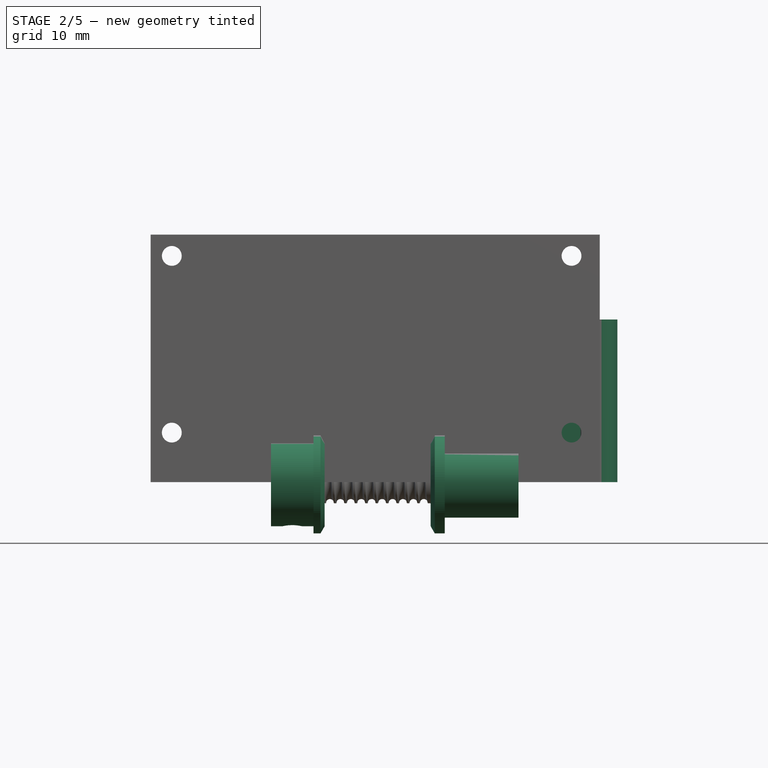
[diagram: stage 2 of 5 — front view after this stage's code; geometry added in this stage tinted green]
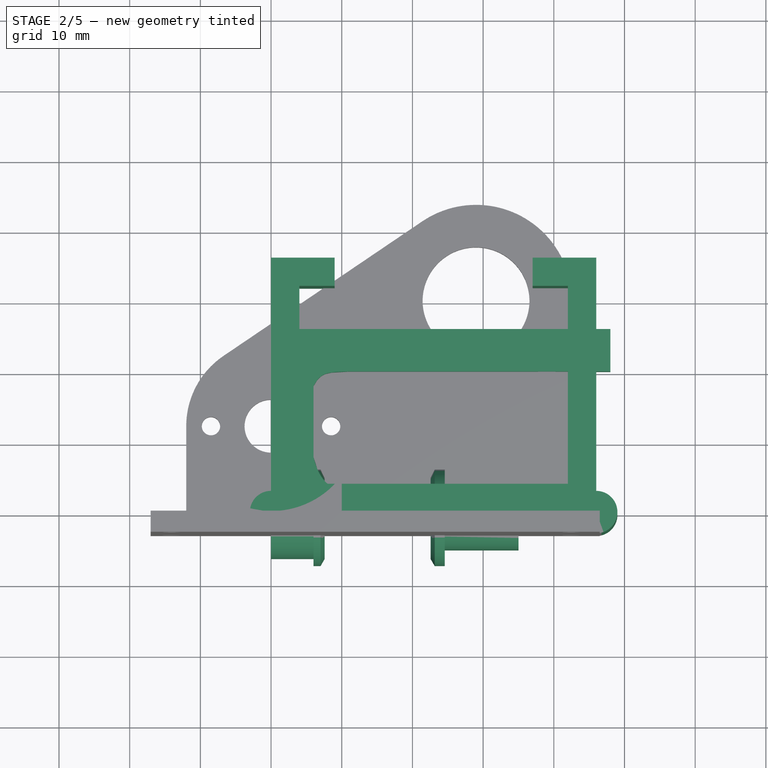
[diagram: stage 2 of 5 — top view after this stage's code; geometry added in this stage tinted green]
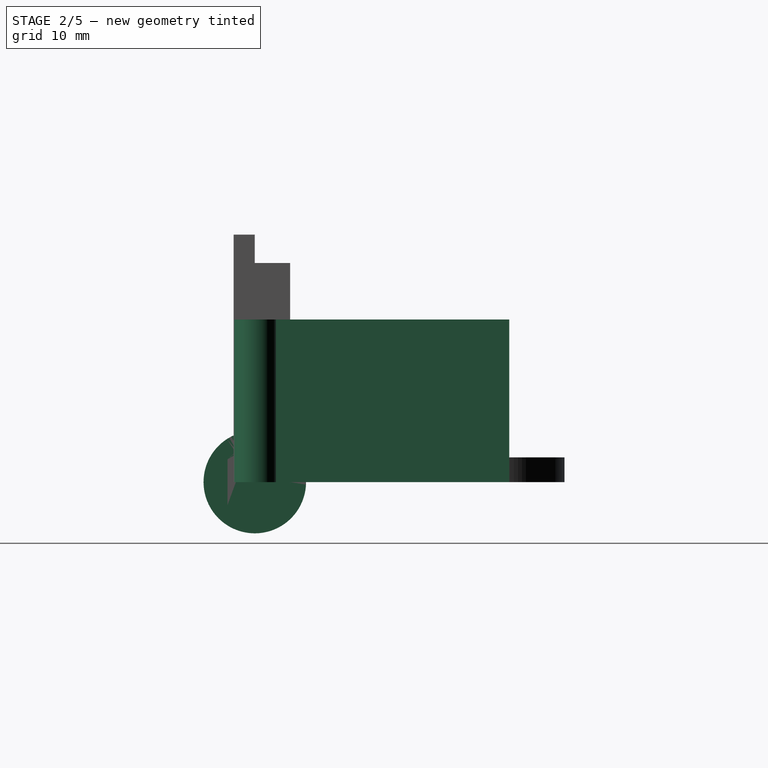
[diagram: stage 2 of 5 — right view after this stage's code; geometry added in this stage tinted green]
FEATURE [PartDesign::Body] Body003  label="Body003holeBig"
  AllowCompound = false
  Group = -> [Sketch004,Pad005,Sketch007,Pocket,Sketch008,Pad006,Sketch018,Pad012,Pad013]
  Origin = -> Origin003
  Tip = -> Pad013
FEATURE [Sketcher::SketchObject] Sketch019
  ArcFitTolerance = 1e-06
  AttachmentSupport = -> [XY_Plane008]
  FullyConstrained = true
  MakeInternals = false
  MapMode = 5
  expr: Constraints[25] = VarSet.bottomBlindWidth
  expr: Constraints[26] = VarSet.bottomBlindHeight
  expr: Constraints[30] = VarSet.bottomBlindAttachementThickness
  expr: Constraints[32] = VarSet.bottomBlindAttachementThickness
  expr: Constraints[33] = VarSet.bottomBlindAttachementThickness
  expr: Constraints[34] = VarSet.bottomBlindAttachementThickness
  sketch-geometry (12):
    g0: LineSegment StartX=4 StartY=4 StartZ=0 EndX=42 EndY=4 EndZ=0
    g1: LineSegment StartX=42 StartY=4 StartZ=0 EndX=42 EndY=32 EndZ=0
    g2: LineSegment StartX=42 StartY=32 StartZ=0 EndX=37 EndY=32 EndZ=0
    g3: LineSegment StartX=4 StartY=32 StartZ=0 EndX=4 EndY=4 EndZ=0
    g4: LineSegment StartX=0 StartY=0 StartZ=0 EndX=46 EndY=0 EndZ=0
    g5: LineSegment StartX=46 StartY=0 StartZ=0 EndX=46 EndY=36 EndZ=0
    g6: LineSegment StartX=46 StartY=36 StartZ=0 EndX=37 EndY=36 EndZ=0
    g7: LineSegment StartX=0 StartY=36 StartZ=0 EndX=0 EndY=0 EndZ=0
    g8: LineSegment StartX=9 StartY=36 StartZ=0 EndX=9 EndY=32 EndZ=0
    g9: LineSegment StartX=37 StartY=36 StartZ=0 EndX=37 EndY=32 EndZ=0
    g10: LineSegment StartX=9 StartY=36 StartZ=0 EndX=0 EndY=36 EndZ=0
    g11: LineSegment StartX=9 StartY=32 StartZ=0 EndX=4 EndY=32 EndZ=0
  constraints (37):
    c: Coincident(g0,g1)
    c: Coincident(g1,g2)
    c: Coincident(g11,g3)
    c: Coincident(g3,g0)
    c: Horizontal(g0)
    c: Horizontal(g2)
    c: Vertical(g1)
    c: Vertical(g3)
    c: Coincident(g4,g5)
    c: Coincident(g5,g6)
    c: Coincident(g10,g7)
    c: Coincident(g7,g4)
    c: Horizontal(g4)
    c: Horizontal(g6)
    c: Vertical(g5)
    c: Vertical(g7)
    c: Coincident(g4,g-1)
    c: PointOnObject(g8,g10)
    c: PointOnObject(g8,g11)
    c: Vertical(g8)
    c: Vertical(g9)
    c: Coincident(g6,g9)
    c: PointOnObject(g10,g8)
    c: Coincident(g2,g9)
    c: PointOnObject(g11,g8)
    c: DistanceX(g0,g0) = 38
    c: DistanceY(g1,g1) = 28
    c: Horizontal(g10)
    c: Horizontal(g11)
    c: Equal(g1,g3)
    c: DistanceY(g8,g8) = 4
    c: Equal(g8,g9)
    c: DistanceY(g4,g0) = 4
    c: DistanceX(g4,g0) = 4
    c: DistanceX(g0,g4) = 4
    c: Equal(g11,g2)
    c: DistanceX(g11,g11) = 5
FEATURE [PartDesign::Pad] Pad014
  Direction = (0,0,1)
  Length = 23
  Length2 = 10
  Profile = -> Sketch019
  ReferenceAxis = -> Sketch019 [N_Axis]
  Suppressed = false
  Type = 0
  expr: Length = VarSet.blindBottomAttachementLen
FEATURE [Sketcher::SketchObject] Sketch020
  ArcFitTolerance = 1e-06
  AttachmentSupport = -> [XY_Plane008]
  ExternalGeometry = -> [Pad014]
  FullyConstrained = true
  MakeInternals = false
  MapMode = 5
  sketch-geometry (6):
    g0: ArcOfCircle CenterX=46 CenterY=0 CenterZ=0 NormalX=0 NormalY=0 NormalZ=1 AngleXU=0 Radius=3 StartAngle=3.87132 EndAngle=7.85398
    g1: LineSegment StartX=2.23607 StartY=-2 StartZ=0 EndX=43.7639 EndY=-2 EndZ=0
    g2: LineSegment StartX=4e-16 StartY=0 StartZ=0 EndX=46 EndY=0 EndZ=0
    g3: LineSegment StartX=4e-16 StartY=3 StartZ=0 EndX=4e-16 EndY=0 EndZ=0
    g4: LineSegment StartX=46 StartY=3 StartZ=0 EndX=46 EndY=0 EndZ=0
    g5: ArcOfCircle CenterX=4e-16 CenterY=0 CenterZ=0 NormalX=0 NormalY=0 NormalZ=1 AngleXU=0 Radius=3 StartAngle=1.5708 EndAngle=5.55346
  constraints (16):
    c: Coincident(g0,g-7)
    c: Radius(g0) = 3
    c: Horizontal(g1)
    c: Coincident(g0,g1)
    c: Coincident(g5,g1)
    c: Vertical(g3)
    c: Coincident(g4,g0)
    c: Vertical(g4)
    c: Coincident(g0,g4)
    c: Coincident(g5,g3)
    c: Coincident(g2,g3)
    c: Coincident(g2,g0)
    c: Coincident(g2,g5)
    c: Equal(g5,g0)
    c: DistanceY(g1,g-1) = 2
    c: Coincident(g2,g-1)
FEATURE [PartDesign::Pad] Pad015
  BaseFeature = -> Pad014
  Direction = (0,0,1)
  Length = 23
  Length2 = 10
  Profile = -> Sketch020
  ReferenceAxis = -> Sketch020 [N_Axis]
  Suppressed = false
  Type = 0
  expr: Length = VarSet.blindBottomAttachementLen
FEATURE [PartDesign::Body] Body008  label="Body008BottomBlindAttacher"
  AllowCompound = false
  Group = -> [Sketch019,Pad014,Sketch020,Pad015,Sketch021,Pocket003,Sketch022,Pad016,Sketch023,Pocket004]
  Origin = -> Origin008
  Tip = -> Pocket004
FEATURE [Sketcher::SketchObject] Sketch024
  ArcFitTolerance = 1e-06
  AttachmentSupport = -> [XY_Plane009]
  FullyConstrained = false
  MakeInternals = false
  MapMode = 5
  expr: Constraints[16] = VarSet.baseKafScrewStart + VarSet.motorMountScrewCenter * 2 + VarSet.screwToSide
  expr: Constraints[36] = VarSet.bottomWindowWoodGap
  expr: Constraints[53] = VarSet.bottomKafSideWidth + 1 mm
  expr: Constraints[59] = VarSet.bottomKafSideWidth
  expr: Constraints[61] = VarSet.bottomKafThickness
  expr: Constraints[65] = VarSet.bottomKafThickness * 2
  sketch-geometry (32):
    g0: LineSegment [constr] StartX=6 StartY=3 StartZ=0 EndX=48 EndY=3 EndZ=0
    g1: LineSegment [constr] StartX=48 StartY=3 StartZ=0 EndX=48 EndY=20.2 EndZ=0
    g2: LineSegment [constr] StartX=48 StartY=20.2 StartZ=0 EndX=6 EndY=20.2 EndZ=0
    g3: LineSegment [constr] StartX=6 StartY=20.2 StartZ=0 EndX=6 EndY=3 EndZ=0
    g4: LineSegment [constr] StartX=0 StartY=0 StartZ=0 EndX=6 EndY=0 EndZ=0
    g5: LineSegment [constr] StartX=6 StartY=0 StartZ=0 EndX=6 EndY=3 EndZ=0
    g6: LineSegment [constr] StartX=48 StartY=3 StartZ=0 EndX=48 EndY=0 EndZ=0
    g7: LineSegment [constr] StartX=48 StartY=0 StartZ=0 EndX=37 EndY=0 EndZ=0
    g8: LineSegment StartX=0 StartY=26.2 StartZ=0 EndX=0 EndY=0 EndZ=0
    g9: LineSegment StartX=0 StartY=0 StartZ=0 EndX=29 EndY=0 EndZ=0
    g10: LineSegment StartX=29 StartY=3 StartZ=0 EndX=11 EndY=3 EndZ=0
    g11: LineSegment StartX=48 StartY=20.2 StartZ=0 EndX=11 EndY=20.2 EndZ=0
    g12-g15: Circle [constr] x4 (B-spline internal-alignment scaffolding for g16; pole/knot coordinates omitted)
    g16: BSplineCurve PolesCount=4 KnotsCount=2 Degree=3 IsPeriodic=0
    g17: GeomPoint [constr] X=11 Y=20.2 Z=0
    g18: GeomPoint [constr] X=6 Y=18.1 Z=0
    g19: LineSegment StartX=6 StartY=18.1 StartZ=0 EndX=6 EndY=8.1 EndZ=0
    g20: LineSegment [constr] StartX=11 StartY=20.2 StartZ=0 EndX=11 EndY=3 EndZ=0
    g21: LineSegment [constr] StartX=0 StartY=13.1 StartZ=0 EndX=35.9855 EndY=13.1 EndZ=0
    g22-g25: Circle [constr] x4 (B-spline internal-alignment scaffolding for g26; pole/knot coordinates omitted)
    g26: BSplineCurve PolesCount=4 KnotsCount=2 Degree=3 IsPeriodic=0
    g27: GeomPoint [constr] X=11 Y=3 Z=0
    g28: GeomPoint [constr] X=6 Y=8.1 Z=0
    g29: LineSegment StartX=48 StartY=20.2 StartZ=0 EndX=48 EndY=26.2 EndZ=0
    g30: LineSegment StartX=48 StartY=26.2 StartZ=0 EndX=0 EndY=26.2 EndZ=0
    g31: LineSegment StartX=29 StartY=3 StartZ=0 EndX=29 EndY=0 EndZ=0
  constraints (76):
    c: Coincident(g0,g1)
    c: Coincident(g1,g2)
    c: Coincident(g2,g3)
    c: Coincident(g3,g0)
    c: Horizontal(g0)
    c: Horizontal(g2)
    c: Vertical(g1)
    c: Vertical(g3)
    c: Coincident(g4,g5)
    c: Horizontal(g4)
    c: Vertical(g5)
    c: Coincident(g5,g0)
    c: Coincident(g6,g7)
    c: Vertical(g6)
    c: Horizontal(g7)
    c: Coincident(g6,g0)
    c: DistanceX(g2,g2) = 42
    c: Coincident(g11,g1)
    c: Weight(g12) = 1
    c: Equal(g12,g13)
    c: Equal(g12,g14)
    c: Equal(g12,g15)
    c: InternalAlignment(g12-g15 -> g16) x4
    c: InternalAlignment(g17,g16)
    c: InternalAlignment(g18,g16)
    c: PointOnObject(g12,g11)
    c: PointOnObject(g15,g3)
    c: Coincident(g19,g16)
    c: PointOnObject(g11,g16)
    c: Coincident(g20,g11)
    c: Coincident(g20,g10)
    c: Vertical(g20)
    c: PointOnObject(g16,g2)
    c: DistanceY(g3,g3) = 17.2
    c: DistanceX(g2,g16) = 5
    c: Symmetric(g8,g8,g21)
    c: Symmetric(g16,g19,g21)
    c: DistanceY(g19,g19) = 10
    c: Weight(g22) = 1
    c: Equal(g22,g23)
    c: Equal(g22,g24)
    c: Equal(g22,g25)
    c: InternalAlignment(g22-g25 -> g26) x4
    c: InternalAlignment(g27,g26)
    c: InternalAlignment(g28,g26)
    c: Coincident(g22,g10)
    c: Coincident(g25,g19)
    c: DistanceX(g21,g14) = 7
    c: Horizontal(g10)
    c: PointOnObject(g26,g3)
    c: Vertical(g8)
    c: Coincident(g8,g9)
    c: Coincident(g8,g-1)
    c: DistanceX(g4,g4) = 6
    c: Coincident(g4,g8)
    c: DistanceY(g6,g0) = 3
    c: Horizontal(g9)
    c: Coincident(g29,g1)
    c: Vertical(g29)
    c: DistanceY(g29,g29) = 6
    c: Coincident(g30,g29)
    c: Coincident(g30,g8)
    c: Horizontal(g30)
    c: DistanceY(g0,g24) = 1.28
    c: DistanceY(g0,g23) = 0.65
    c: DistanceX(g24,g23) = 1.56
    c: DistanceX(g0,g23) = 2.52
    c: DistanceX(g16,g13) = 2
    c: DistanceY(g16,g13) = 2
    c: DistanceY(g16,g14) = 2
    c: Vertical(g31)
    c: Coincident(g9,g31)
    c: Coincident(g31,g10)
    c: PointOnObject(g10,g0)
    c: DistanceX(g9,g9) = 29
    c: PointOnObject(g6,g-1)
FEATURE [PartDesign::Pad] Pad017
  Direction = (0,0,1)
  Length = 6
  Length2 = 10
  Profile = -> Sketch024
  ReferenceAxis = -> Sketch024 [N_Axis]
  Suppressed = false
  Type = 0
FEATURE [Sketcher::SketchObject] Sketch025
  ArcFitTolerance = 1e-06
  AttachmentOffset = pos=(0,0,-26.2) rot=(0,0,1;0rad)
  AttachmentSupport = -> [XZ_Plane009]
  ExternalGeometry = -> [Pad017]
  FullyConstrained = false
  MakeInternals = false
  MapMode = 5
  Placement = pos=(0,26.2,-5.8e-15) rot=(1,0,0;1.5708rad)
  expr: .AttachmentOffset.Base.z = -VarSet.bottomWindowWoodGap - VarSet.bottomKafThickness * 3
  expr: Constraints[11] = VarSet.screwToSide
  expr: Constraints[2] = VarSet.m3ScrewTight
  expr: Constraints[4] = VarSet.baseKafScrewStart
  expr: Constraints[8] = VarSet.motorMountScrewCenter * 2
  sketch-geometry (5):
    g0: LineSegment [constr] StartX=4 StartY=2.89271 StartZ=0 EndX=8 EndY=3.10729 EndZ=0
    g1: LineSegment [constr] StartX=6 StartY=9.25052 StartZ=0 EndX=6 EndY=-0.800876 EndZ=0
    g2: Circle CenterX=6 CenterY=3 CenterZ=0 NormalX=0 NormalY=0 NormalZ=1 AngleXU=0 Radius=1.4
    g3: LineSegment [constr] StartX=6 StartY=3 StartZ=0 EndX=39 EndY=3 EndZ=0
    g4: Circle CenterX=39 CenterY=3 CenterZ=0 NormalX=0 NormalY=0 NormalZ=1 AngleXU=0 Radius=1.4
  constraints (12):
    c: Symmetric(g0,g0,g2)
    c: PointOnObject(g2,g1)
    c: Radius(g2) = 1.4
    c: DistanceX(g0,g0) = 4
    c: DistanceX(g-1,g1) = 6
    c: Vertical(g1)
    c: Coincident(g3,g2)
    c: Horizontal(g3)
    c: DistanceX(g3,g3) = 33
    c: Coincident(g4,g3)
    c: Equal(g2,g4)
    c: DistanceY(g-1,g2) = 3
FEATURE [PartDesign::Pocket] Pocket005
  BaseFeature = -> Pad017
  Direction = (0,1,-2e-16)
  Length = 6
  Length2 = 5
  Profile = -> Sketch025
  ReferenceAxis = -> Sketch025 [N_Axis]
  Reversed = true
  Suppressed = false
  Type = 0
FEATURE [PartDesign::Revolution] Revolution
  Angle = 360
  Angle2 = 60
  Axis = (1,0,0)
  Base = (0,0,0)
  BaseFeature = -> SubtractiveHelix
  Placement = pos=(0,0,0) rot=(1,0,0;1.5708rad)
  Profile = -> Sketch028
  ReferenceAxis = -> Sketch028 [H_Axis]
  Suppressed = false
  Type = 0
FEATURE [PartDesign::Pocket] Pocket006
  BaseFeature = -> Revolution
  Direction = (0,0,-1)
  Length = 5
  Length2 = 5
  Midplane = true
  Placement = pos=(0,0,0) rot=(1,0,0;1.5708rad)
  Profile = -> Sketch029
  ReferenceAxis = -> Sketch029 [N_Axis]
  Suppressed = false
  Type = 1
FEATURE [PartDesign::Body] Body011  label="Body"
  AllowCompound = false
  Origin = -> Origin011
FEATURE [Sketcher::SketchObject] Sketch032
  ArcFitTolerance = 1e-06
  AttachmentSupport = -> [YZ_Plane010]
  FullyConstrained = true
  MakeInternals = false
  MapMode = 5
  Placement = pos=(0,0,0) rot=(0.57735,0.57735,0.57735;2.0944rad)
  expr: Constraints[1] = VarSet.motorRodR + 0.2 mm
  sketch-geometry (1):
    g0: Circle CenterX=0 CenterY=0 CenterZ=0 NormalX=0 NormalY=0 NormalZ=1 AngleXU=0 Radius=1.35
  constraints (2):
    c: Coincident(g0,g-1)
    c: Radius(g0) = 1.35
FEATURE [PartDesign::Pocket] Pocket007
  BaseFeature = -> Pocket006
  Direction = (-1,0,0)
  Length = 12
  Length2 = 5
  Placement = pos=(0,0,0) rot=(1,0,0;1.5708rad)
  Profile = -> Sketch032
  ReferenceAxis = -> Sketch032 [N_Axis]
  Reversed = true
  Suppressed = false
  Type = 0
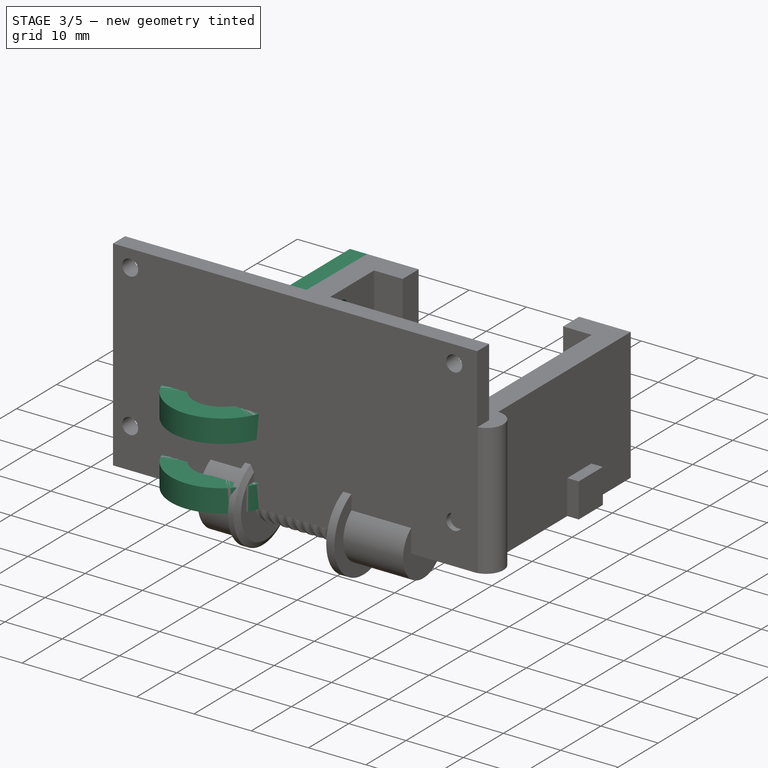
[diagram: stage 3 of 5 — iso view after this stage's code; geometry added in this stage tinted green]
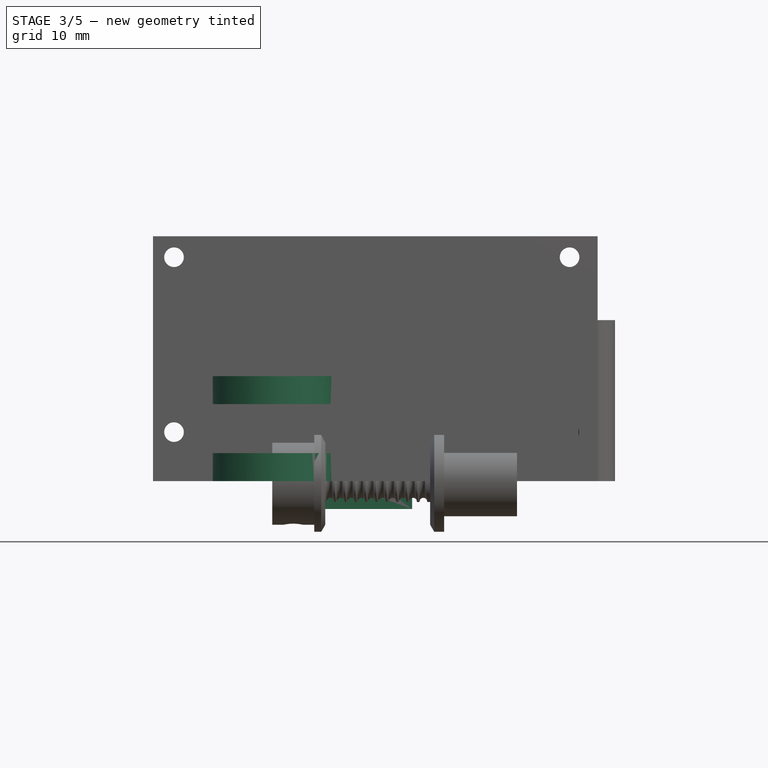
[diagram: stage 3 of 5 — front view after this stage's code; geometry added in this stage tinted green]
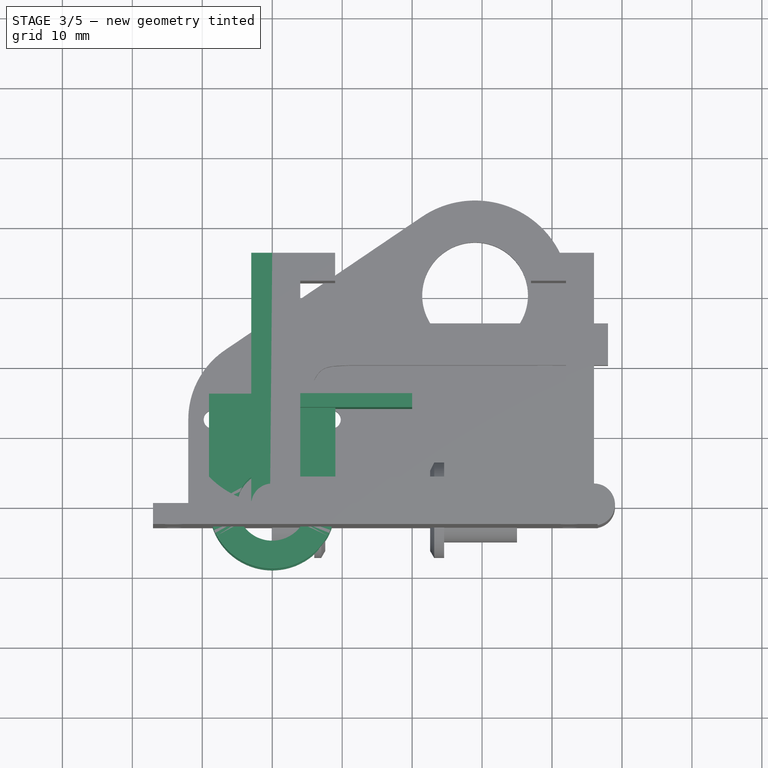
[diagram: stage 3 of 5 — top view after this stage's code; geometry added in this stage tinted green]
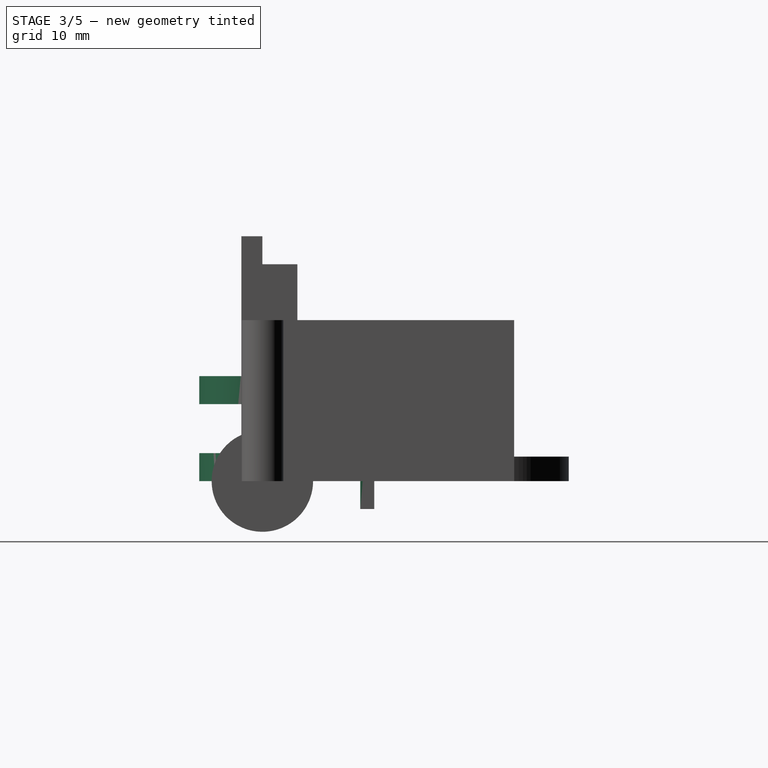
[diagram: stage 3 of 5 — right view after this stage's code; geometry added in this stage tinted green]
FEATURE [PartDesign::Body] Body004  label="Body004TopRoller"
  AllowCompound = false
  Group = -> [Sketch005,Pad004,Sketch006,Groove]
  Origin = -> Origin004
  Tip = -> Groove
FEATURE [PartDesign::Pad] Pad005
  Direction = (0,0,1)
  Length = 15
  Length2 = 10
  Profile = -> Sketch004
  ReferenceAxis = -> Sketch004 [N_Axis]
  Suppressed = false
  Type = 0
  expr: Length = VarSet.topRollerOutsidePad
FEATURE [Sketcher::SketchObject] Sketch007
  ArcFitTolerance = 1e-06
  AttachmentSupport = -> [YZ_Plane003]
  FullyConstrained = true
  MakeInternals = false
  MapMode = 5
  Placement = pos=(0,0,0) rot=(0.57735,0.57735,0.57735;2.0944rad)
  expr: Constraints[10] = VarSet.topThickNess
  expr: Constraints[11] = VarSet.topRollerCenterGap
  expr: Constraints[8] = VarSet.topRodR + VarSet.topThickNess
  expr: Constraints[9] = VarSet.topRollerR + VarSet.topRollerSep
  sketch-geometry (4):
    g0: LineSegment StartX=-9.03 StartY=11 StartZ=0 EndX=-9.03 EndY=4 EndZ=0
    g1: LineSegment StartX=-9.03 StartY=4 StartZ=0 EndX=14 EndY=4 EndZ=0
    g2: LineSegment StartX=14 StartY=4 StartZ=0 EndX=14 EndY=11 EndZ=0
    g3: LineSegment StartX=14 StartY=11 StartZ=0 EndX=-9.03 EndY=11 EndZ=0
  constraints (12):
    c: Coincident(g0,g1)
    c: Coincident(g1,g2)
    c: Coincident(g2,g3)
    c: Coincident(g3,g0)
    c: Vertical(g0)
    c: Vertical(g2)
    c: Horizontal(g1)
    c: Horizontal(g3)
    c: DistanceX(g0,g-1) = 9.03
    c: DistanceX(g-1,g1) = 14
    c: DistanceY(g-1,g0) = 4
    c: DistanceY(g0,g0) = 7
FEATURE [PartDesign::Pocket] Pocket
  BaseFeature = -> Pad005
  Direction = (-1,0,0)
  Length = 5
  Length2 = 5
  Midplane = true
  Profile = -> Sketch007
  ReferenceAxis = -> Sketch007 [N_Axis]
  Suppressed = false
  Type = 1
FEATURE [Sketcher::SketchObject] Sketch008
  ArcFitTolerance = 1e-06
  AttachmentOffset = pos=(0,0,-16) rot=(0,0,1;0rad)
  AttachmentSupport = -> [XZ_Plane003]
  ExternalGeometry = -> [Pocket]
  FullyConstrained = true
  MakeInternals = false
  MapMode = 5
  Placement = pos=(0,16,-3.6e-15) rot=(1,0,0;1.5708rad)
  expr: .AttachmentOffset.Base.z = -VarSet.topRollerR - VarSet.topRollerThickness - VarSet.topRollerSep
  expr: Constraints[10] = VarSet.topRollerTopPad
  expr: Constraints[9] = VarSet.topThickNess
  sketch-geometry (4):
    g0: LineSegment StartX=0 StartY=19 StartZ=0 EndX=0 EndY=-4 EndZ=0
    g1: LineSegment StartX=0 StartY=-4 StartZ=0 EndX=20 EndY=-4 EndZ=0
    g2: LineSegment StartX=20 StartY=-4 StartZ=0 EndX=20 EndY=19 EndZ=0
    g3: LineSegment StartX=20 StartY=19 StartZ=0 EndX=0 EndY=19 EndZ=0
  constraints (12):
    c: Coincident(g0,g1)
    c: Coincident(g1,g2)
    c: Coincident(g2,g3)
    c: Coincident(g3,g0)
    c: Vertical(g0)
    c: Vertical(g2)
    c: Horizontal(g1)
    c: Horizontal(g3)
    c: PointOnObject(g0,g-2)
    c: DistanceY(g-3,g0) = 4
    c: DistanceY(g0,g-1) = 4
    c: DistanceX(g3,g3) = 20
FEATURE [PartDesign::Pad] Pad006
  BaseFeature = -> Pocket
  Direction = (0,-1,2e-16)
  Length = 2
  Length2 = 10
  Profile = -> Sketch008
  ReferenceAxis = -> Sketch008 [N_Axis]
  Suppressed = false
  Type = 0
  expr: Length = VarSet.topRollerThickness
FEATURE [Sketcher::SketchObject] Sketch021
  ArcFitTolerance = 1e-06
  AttachmentSupport = -> [XZ_Plane008]
  ExternalGeometry = -> [Sketch020]
  FullyConstrained = false
  MakeInternals = false
  MapMode = 5
  Placement = pos=(0,0,0) rot=(1,0,0;1.5708rad)
  expr: Constraints[20] = VarSet.tightenerAttachementToScrew
  expr: Constraints[21] = VarSet.tightenerAttachementToScrew
  expr: Constraints[22] = VarSet.tightenerAttachementToScrew
  expr: Constraints[23] = VarSet.tightenerAttachementToScrew
  expr: Constraints[31] = VarSet.m3ScrewTight
  expr: Constraints[7] = VarSet.tightenerAttachementBaseWidth
  expr: Constraints[8] = VarSet.tightenerAttachmentBaseHeight
  sketch-geometry (13):
    g0: LineSegment [constr] StartX=11.5 StartY=23 StartZ=0 EndX=11.5 EndY=0 EndZ=0
    g1: LineSegment [constr] StartX=11.5 StartY=0 StartZ=0 EndX=34.5 EndY=0 EndZ=0
    g2: LineSegment [constr] StartX=34.5 StartY=0 StartZ=0 EndX=34.5 EndY=23 EndZ=0
    g3: LineSegment [constr] StartX=34.5 StartY=23 StartZ=0 EndX=11.5 EndY=23 EndZ=0
    g4: LineSegment [constr] StartX=23 StartY=34.9115 StartZ=0 EndX=23 EndY=-8.94116 EndZ=0
    g5: LineSegment [constr] StartX=14.5 StartY=20 StartZ=0 EndX=14.5 EndY=3 EndZ=0
    g6: LineSegment [constr] StartX=14.5 StartY=3 StartZ=0 EndX=31.5 EndY=3 EndZ=0
    g7: LineSegment [constr] StartX=31.5 StartY=3 StartZ=0 EndX=31.5 EndY=20 EndZ=0
    g8: LineSegment [constr] StartX=31.5 StartY=20 StartZ=0 EndX=14.5 EndY=20 EndZ=0
    g9: Circle CenterX=14.5 CenterY=20 CenterZ=0 NormalX=0 NormalY=0 NormalZ=1 AngleXU=0 Radius=1.4
    g10: Circle CenterX=31.5 CenterY=20 CenterZ=0 NormalX=0 NormalY=0 NormalZ=1 AngleXU=0 Radius=1.4
    g11: Circle CenterX=14.5 CenterY=3 CenterZ=0 NormalX=0 NormalY=0 NormalZ=1 AngleXU=0 Radius=1.4
    g12: Circle CenterX=31.5 CenterY=3 CenterZ=0 NormalX=0 NormalY=0 NormalZ=1 AngleXU=0 Radius=1.4
  constraints (32):
    c: Coincident(g0,g1)
    c: Coincident(g1,g2)
    c: Coincident(g2,g3)
    c: Coincident(g3,g0)
    c: Vertical(g0)
    c: Vertical(g2)
    c: Horizontal(g1)
    c: DistanceY(g0,g0) = 23
    c: DistanceX(g3,g3) = 23
    c: DistanceY(g-1,g0) = 0
    c: Symmetric(g-3,g-4,g4)
    c: Symmetric(g2,g0,g4)
    c: Coincident(g5,g6)
    c: Coincident(g6,g7)
    c: Coincident(g7,g8)
    c: Coincident(g8,g5)
    c: Vertical(g5)
    c: Vertical(g7)
    c: Horizontal(g6)
    c: Horizontal(g8)
    c: DistanceY(g5,g0) = 3
    c: DistanceY(g0,g5) = 3
    c: DistanceX(g0,g5) = 3
    c: DistanceX(g7,g2) = 3
    c: Coincident(g9,g5)
    c: Coincident(g10,g7)
    c: Coincident(g11,g5)
    c: Coincident(g12,g6)
    c: Equal(g10,g9)
    c: Equal(g9,g11)
    c: Equal(g12,g11)
    c: Radius(g9) = 1.4
FEATURE [PartDesign::Pocket] Pocket003
  BaseFeature = -> Pad015
  Direction = (0,1,-2e-16)
  Length = 5
  Length2 = 5
  Midplane = true
  Profile = -> Sketch021
  ReferenceAxis = -> Sketch021 [N_Axis]
  Suppressed = true
  Type = 1
FEATURE [Sketcher::SketchObject] Sketch022
  ArcFitTolerance = 1e-06
  AttachmentSupport = -> [YZ_Plane008]
  ExternalGeometry = -> [Pocket003]
  FullyConstrained = true
  MakeInternals = false
  MapMode = 5
  Placement = pos=(0,0,0) rot=(0.57735,0.57735,0.57735;2.0944rad)
  sketch-geometry (4):
    g0: LineSegment StartX=0 StartY=0 StartZ=0 EndX=36 EndY=0 EndZ=0
    g1: LineSegment StartX=36 StartY=0 StartZ=0 EndX=36 EndY=23 EndZ=0
    g2: LineSegment StartX=36 StartY=23 StartZ=0 EndX=0 EndY=23 EndZ=0
    g3: LineSegment StartX=0 StartY=23 StartZ=0 EndX=0 EndY=0 EndZ=0
  constraints (10):
    c: Coincident(g0,g1)
    c: Coincident(g1,g2)
    c: Coincident(g2,g3)
    c: Coincident(g3,g0)
    c: Horizontal(g0)
    c: Horizontal(g2)
    c: Vertical(g1)
    c: Vertical(g3)
    c: Coincident(g0,g-1)
    c: Coincident(g1,g-3)
FEATURE [PartDesign::Pad] Pad016
  BaseFeature = -> Pocket003
  Direction = (1,0,0)
  Length = 3
  Length2 = 10
  Profile = -> Sketch022
  ReferenceAxis = -> Sketch022 [N_Axis]
  Reversed = true
  Suppressed = false
  Type = 0
FEATURE [Sketcher::SketchObject] Sketch023
  ArcFitTolerance = 1e-06
  AttachmentSupport = -> [YZ_Plane008]
  ExternalGeometry = -> [Pad016]
  FullyConstrained = true
  MakeInternals = false
  MapMode = 5
  Placement = pos=(0,0,0) rot=(0.57735,0.57735,0.57735;2.0944rad)
  expr: Constraints[7] = VarSet.blindBottomAttachementLen
  expr: Constraints[8] = VarSet.tightenerAttachmentBaseHeight
  sketch-geometry (12):
    g0: LineSegment [constr] StartX=4 StartY=23 StartZ=0 EndX=4 EndY=0 EndZ=0
    g1: LineSegment [constr] StartX=4 StartY=0 StartZ=0 EndX=27 EndY=0 EndZ=0
    g2: LineSegment [constr] StartX=27 StartY=0 StartZ=0 EndX=27 EndY=23 EndZ=0
    g3: LineSegment [constr] StartX=27 StartY=23 StartZ=0 EndX=4 EndY=23 EndZ=0
    g4: LineSegment [constr] StartX=7 StartY=20 StartZ=0 EndX=7 EndY=3 EndZ=0
    g5: LineSegment [constr] StartX=7 StartY=3 StartZ=0 EndX=24 EndY=3 EndZ=0
    g6: LineSegment [constr] StartX=24 StartY=3 StartZ=0 EndX=24 EndY=20 EndZ=0
    g7: LineSegment [constr] StartX=24 StartY=20 StartZ=0 EndX=7 EndY=20 EndZ=0
    g8: Circle CenterX=7 CenterY=20 CenterZ=0 NormalX=0 NormalY=0 NormalZ=1 AngleXU=0 Radius=1.4
    g9: Circle CenterX=24 CenterY=20 CenterZ=0 NormalX=0 NormalY=0 NormalZ=1 AngleXU=0 Radius=1.4
    g10: Circle CenterX=7 CenterY=3 CenterZ=0 NormalX=0 NormalY=0 NormalZ=1 AngleXU=0 Radius=1.4
    g11: Circle CenterX=24 CenterY=3 CenterZ=0 NormalX=0 NormalY=0 NormalZ=1 AngleXU=0 Radius=1.4
  constraints (31):
    c: Coincident(g0,g1)
    c: Coincident(g1,g2)
    c: Coincident(g2,g3)
    c: Coincident(g3,g0)
    c: Vertical(g0)
    c: Vertical(g2)
    c: Horizontal(g1)
    c: DistanceY(g0,g0) = 23
    c: DistanceX(g3,g3) = 23
    c: Coincident(g4,g5)
    c: Coincident(g5,g6)
    c: Coincident(g6,g7)
    c: Coincident(g7,g4)
    c: Vertical(g4)
    c: Vertical(g6)
    c: Horizontal(g5)
    c: Horizontal(g7)
    c: DistanceY(g4,g0) = 3
    c: DistanceY(g0,g4) = 3
    c: DistanceX(g0,g4) = 3
    c: DistanceX(g6,g2) = 3
    c: Coincident(g8,g4)
    c: Coincident(g9,g6)
    c: Coincident(g10,g4)
    c: Coincident(g11,g5)
    c: Equal(g9,g8)
    c: Equal(g8,g10)
    c: Equal(g11,g10)
    c: Radius(g8) = 1.4
    c: Coincident(g0,g-3)
    c: Horizontal(g3)
FEATURE [PartDesign::Pocket] Pocket004
  BaseFeature = -> Pad016
  Direction = (-1,0,0)
  Length = 10
  Length2 = 5
  Midplane = true
  Profile = -> Sketch023
  ReferenceAxis = -> Sketch023 [N_Axis]
  Suppressed = false
  Type = 0
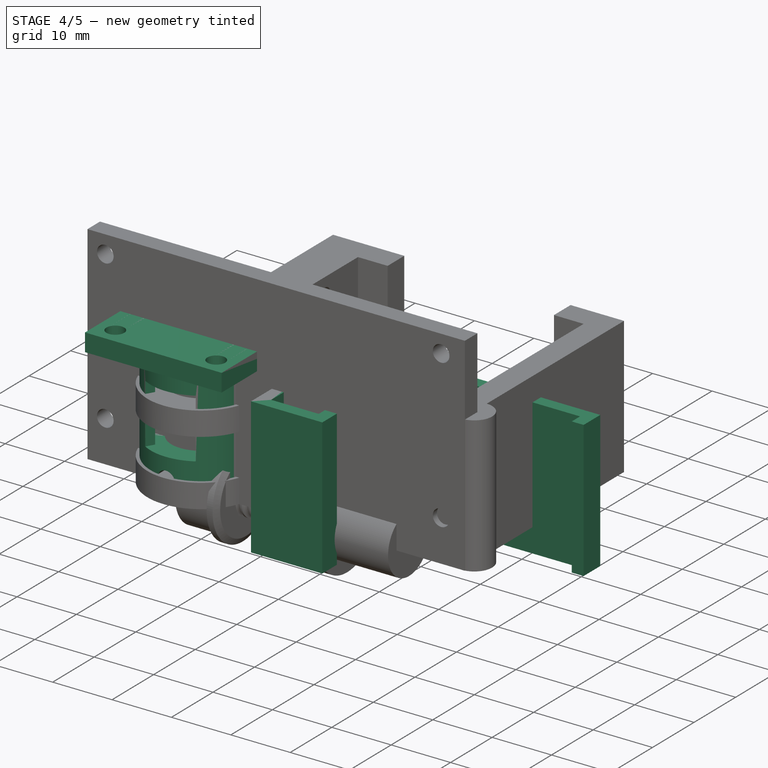
[diagram: stage 4 of 5 — iso view after this stage's code; geometry added in this stage tinted green]
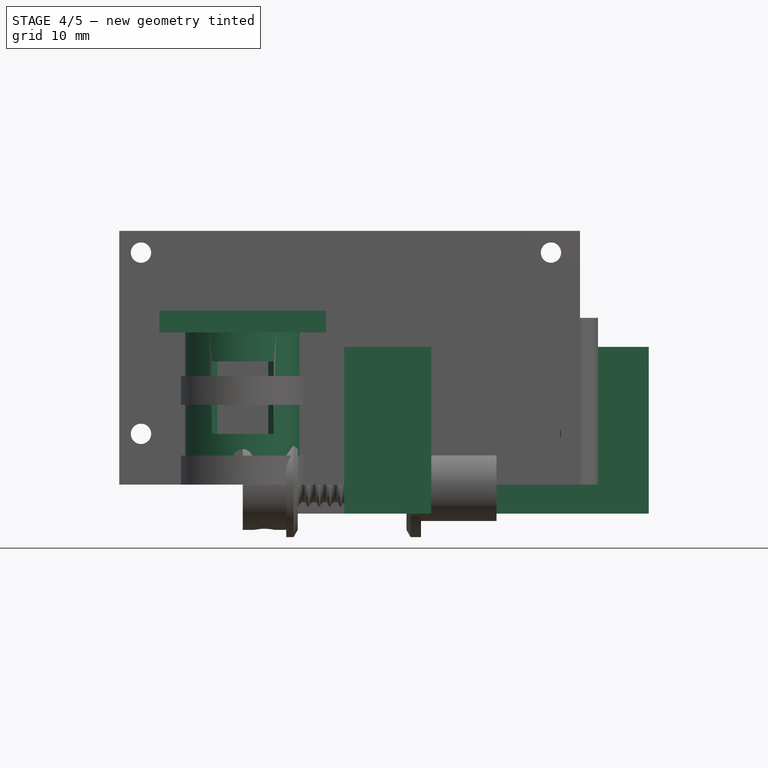
[diagram: stage 4 of 5 — front view after this stage's code; geometry added in this stage tinted green]
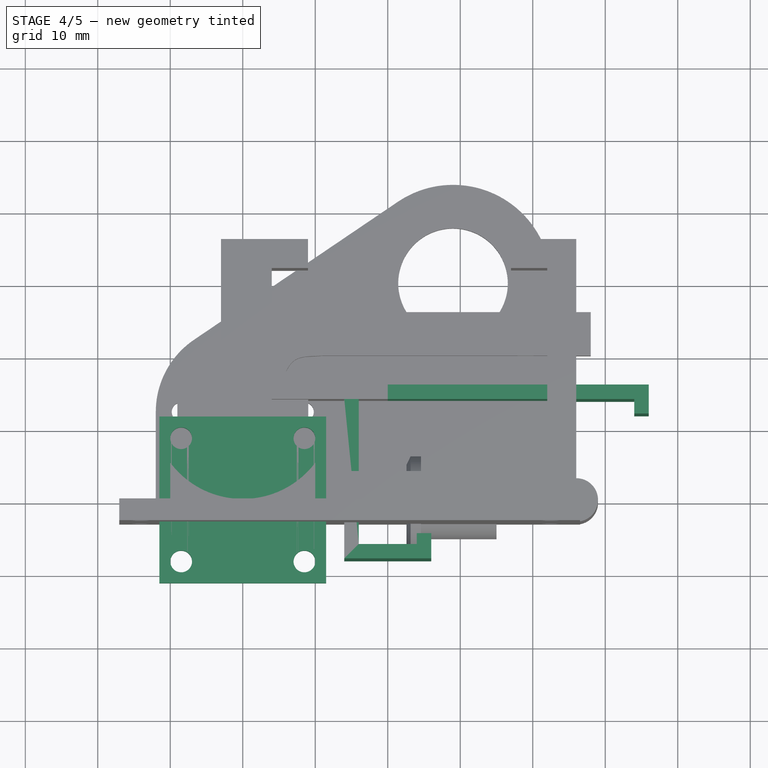
[diagram: stage 4 of 5 — top view after this stage's code; geometry added in this stage tinted green]
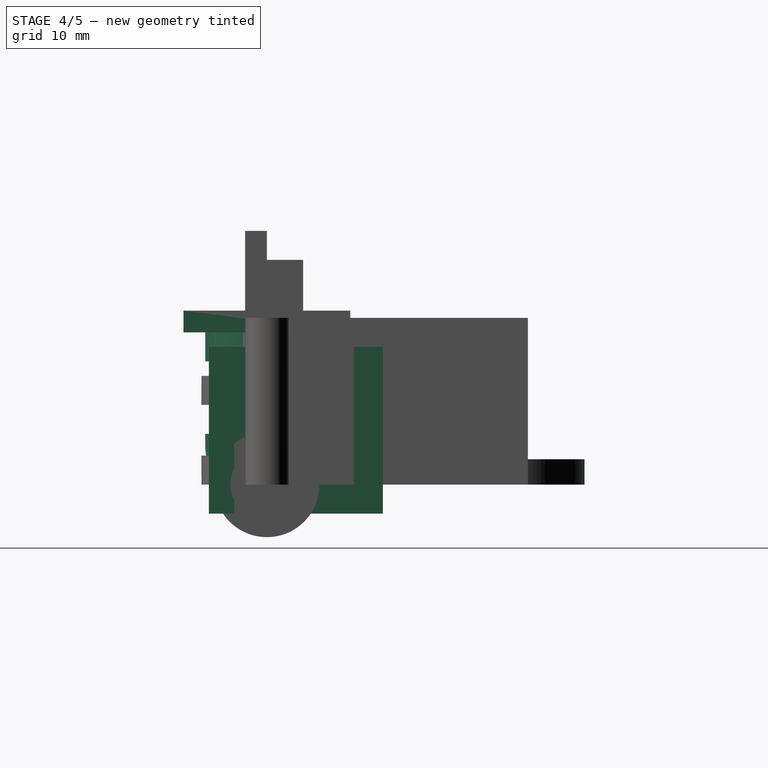
[diagram: stage 4 of 5 — right view after this stage's code; geometry added in this stage tinted green]
FEATURE [PartDesign::Body] Body005  label="Body005TightenerRod"
  AllowCompound = false
  Group = -> [Sketch009,Pad007,Sketch010,Pad008,Sketch011,Pocket001]
  Origin = -> Origin005
  Tip = -> Pocket001
FEATURE [Sketcher::SketchObject] Sketch012
  ArcFitTolerance = 1e-06
  AttachmentSupport = -> [XY_Plane006]
  FullyConstrained = true
  MakeInternals = false
  MapMode = 5
  expr: .AttachmentOffset.Base.z = 0
  expr: Constraints[1] = VarSet.tightenerHoleR
  expr: Constraints[3] = VarSet.tightenerOuterR
  sketch-geometry (2):
    g0: Circle CenterX=0 CenterY=0 CenterZ=0 NormalX=0 NormalY=0 NormalZ=1 AngleXU=0 Radius=5.0125
    g1: Circle CenterX=0 CenterY=0 CenterZ=0 NormalX=0 NormalY=0 NormalZ=1 AngleXU=0 Radius=8.5
  constraints (4):
    c: Coincident(g0,g-1)
    c: Radius(g0) = 5.0125
    c: Coincident(g1,g0)
    c: Radius(g1) = 8.5
FEATURE [PartDesign::Pad] Pad009
  Direction = (0,0,1)
  Length = 21
  Length2 = 10
  Profile = -> Sketch012
  ReferenceAxis = -> Sketch012 [N_Axis]
  Suppressed = false
  Type = 0
  expr: Length = VarSet.tightenerBodyTotalLen
FEATURE [Sketcher::SketchObject] Sketch013
  ArcFitTolerance = 1e-06
  AttachmentSupport = -> [YZ_Plane006]
  FullyConstrained = true
  MakeInternals = false
  MapMode = 5
  Placement = pos=(0,0,0) rot=(0.57735,0.57735,0.57735;2.0944rad)
  expr: Constraints[10] = VarSet.tightenerOpeningCenter - VarSet.tightenerCenterOpeningWidth / 2
  expr: Constraints[11] = VarSet.tightenerOpeningCenter + VarSet.tightenerCenterOpeningWidth / 2
  expr: Constraints[8] = VarSet.tightenerHoleR
  expr: Constraints[9] = VarSet.tightenerCentralChamberHeight
  sketch-geometry (8):
    g0: LineSegment StartX=-7.0125 StartY=17 StartZ=0 EndX=-7.0125 EndY=7 EndZ=0
    g1: LineSegment StartX=-7.0125 StartY=7 StartZ=0 EndX=-5.0125 EndY=7 EndZ=0
    g2: LineSegment StartX=-5.0125 StartY=7 StartZ=0 EndX=-5.0125 EndY=17 EndZ=0
    g3: LineSegment StartX=-5.0125 StartY=17 StartZ=0 EndX=-7.0125 EndY=17 EndZ=0
    g4: LineSegment StartX=5.0125 StartY=17 StartZ=0 EndX=5.0125 EndY=7 EndZ=0
    g5: LineSegment StartX=5.0125 StartY=7 StartZ=0 EndX=7.0125 EndY=7 EndZ=0
    g6: LineSegment StartX=7.0125 StartY=7 StartZ=0 EndX=7.0125 EndY=17 EndZ=0
    g7: LineSegment StartX=7.0125 StartY=17 StartZ=0 EndX=5.0125 EndY=17 EndZ=0
  constraints (23):
    c: Coincident(g0,g1)
    c: Coincident(g1,g2)
    c: Coincident(g2,g3)
    c: Coincident(g3,g0)
    c: Vertical(g0)
    c: Vertical(g2)
    c: Horizontal(g1)
    c: Horizontal(g3)
    c: DistanceX(g1,g-1) = 5.0125
    c: DistanceX(g3,g3) = 2
    c: DistanceY(g-1,g0) = 7
    c: DistanceY(g-1,g0) = 17
    c: Coincident(g4,g5)
    c: Coincident(g5,g6)
    c: Coincident(g6,g7)
    c: Coincident(g7,g4)
    c: Vertical(g4)
    c: Vertical(g6)
    c: Horizontal(g5)
    c: Horizontal(g7)
    c: Equal(g3,g7)
    c: Equal(g4,g2)
    c: Symmetric(g1,g4,g-2)
FEATURE [Sketcher::SketchObject] Sketch014
  ArcFitTolerance = 1e-06
  AttachmentSupport = -> [YZ_Plane006]
  FullyConstrained = true
  MakeInternals = false
  MapMode = 5
  Placement = pos=(0,0,0) rot=(0.57735,0.57735,0.57735;2.0944rad)
  expr: Constraints[19] = VarSet.tightenerOuterR
  expr: Constraints[20] = VarSet.tightenerOpeningCenter - VarSet.tightenerCenterOpeningWidth / 2
  expr: Constraints[21] = VarSet.tightenerOpeningCenter + VarSet.tightenerCenterOpeningWidth / 2
  expr: Constraints[8] = VarSet.tightenerHoleR
  expr: Constraints[9] = VarSet.tightenerCentralChamberHeight
  sketch-geometry (12):
    g0: LineSegment [constr] StartX=-7.0125 StartY=17 StartZ=0 EndX=-7.0125 EndY=7 EndZ=0
    g1: LineSegment [constr] StartX=-7.0125 StartY=7 StartZ=0 EndX=-5.0125 EndY=7 EndZ=0
    g2: LineSegment [constr] StartX=-5.0125 StartY=7 StartZ=0 EndX=-5.0125 EndY=17 EndZ=0
    g3: LineSegment [constr] StartX=-5.0125 StartY=17 StartZ=0 EndX=-7.0125 EndY=17 EndZ=0
    g4: LineSegment StartX=-7.0125 StartY=17 StartZ=0 EndX=-8.5 EndY=17 EndZ=0
    g5: LineSegment StartX=-8.5 StartY=17 StartZ=0 EndX=-8.5 EndY=7 EndZ=0
    g6: LineSegment StartX=-8.5 StartY=7 StartZ=0 EndX=-7.0125 EndY=7 EndZ=0
    g7: LineSegment StartX=-7.0125 StartY=7 StartZ=0 EndX=-7.0125 EndY=17 EndZ=0
    g8: LineSegment StartX=7.0125 StartY=17 StartZ=0 EndX=7.0125 EndY=7 EndZ=0
    g9: LineSegment StartX=7.0125 StartY=7 StartZ=0 EndX=8.5 EndY=7 EndZ=0
    g10: LineSegment StartX=8.5 StartY=7 StartZ=0 EndX=8.5 EndY=17 EndZ=0
    g11: LineSegment StartX=8.5 StartY=17 StartZ=0 EndX=7.0125 EndY=17 EndZ=0
  constraints (33):
    c: Coincident(g0,g1)
    c: Coincident(g1,g2)
    c: Coincident(g2,g3)
    c: Coincident(g3,g0)
    c: Vertical(g0)
    c: Vertical(g2)
    c: Horizontal(g1)
    c: Horizontal(g3)
    c: DistanceX(g1,g-1) = 5.0125
    c: DistanceX(g3,g3) = 2
    c: Coincident(g4,g5)
    c: Coincident(g5,g6)
    c: Coincident(g6,g7)
    c: Coincident(g7,g4)
    c: Horizontal(g4)
    c: Horizontal(g6)
    c: Vertical(g5)
    c: Coincident(g4,g0)
    c: Coincident(g6,g0)
    c: DistanceX(g5,g-1) = 8.5
    c: DistanceY(g-1,g5) = 7
    c: DistanceY(g-1,g4) = 17
    c: Coincident(g8,g9)
    c: Coincident(g9,g10)
    c: Coincident(g10,g11)
    c: Coincident(g11,g8)
    c: Vertical(g8)
    c: Vertical(g10)
    c: Horizontal(g9)
    c: Horizontal(g11)
    c: Equal(g11,g4)
    c: Equal(g5,g8)
    c: Symmetric(g8,g0,g-2)
FEATURE [PartDesign::Groove] Groove001
  Angle = 360
  Angle2 = 60
  Axis = (0,0,1)
  Base = (0,0,0)
  BaseFeature = -> Pad009
  Profile = -> Sketch013
  ReferenceAxis = -> Sketch013 [V_Axis]
  Reversed = true
  Suppressed = false
  Type = 0
FEATURE [PartDesign::Groove] Groove002
  Angle = 60
  Angle2 = 60
  Axis = (0,0,1)
  Base = (0,0,0)
  BaseFeature = -> Groove001
  Midplane = true
  Profile = -> Sketch014
  ReferenceAxis = -> Sketch014 [V_Axis]
  Reversed = true
  Suppressed = false
  Type = 0
FEATURE [Sketcher::SketchObject] Sketch015
  ArcFitTolerance = 1e-06
  AttachmentSupport = -> [XZ_Plane006]
  FullyConstrained = true
  MakeInternals = false
  MapMode = 5
  Placement = pos=(0,0,0) rot=(1,0,0;1.5708rad)
  expr: Constraints[1] = (VarSet.tightenerOpeningCenter - VarSet.tightenerCenterOpeningWidth / 2) / 2
  expr: Constraints[2] = VarSet.m3ScrewTight
  sketch-geometry (1):
    g0: Circle CenterX=0 CenterY=3.5 CenterZ=0 NormalX=0 NormalY=0 NormalZ=1 AngleXU=0 Radius=1.4
  constraints (3):
    c: PointOnObject(g0,g-2)
    c: DistanceY(g-1,g0) = 3.5
    c: Radius(g0) = 1.4
FEATURE [PartDesign::Pocket] Pocket002
  BaseFeature = -> Groove002
  Direction = (0,1,-2e-16)
  Length = 5
  Length2 = 5
  Midplane = true
  Profile = -> Sketch015
  ReferenceAxis = -> Sketch015 [N_Axis]
  Suppressed = false
  Type = 1
FEATURE [Sketcher::SketchObject] Sketch016
  ArcFitTolerance = 1e-06
  AttachmentOffset = pos=(0,0,21) rot=(0,0,1;0rad)
  AttachmentSupport = -> [XY_Plane006]
  FullyConstrained = true
  MakeInternals = false
  MapMode = 5
  Placement = pos=(0,0,21) rot=(0,0,1;0rad)
  expr: .AttachmentOffset.Base.z = VarSet.tightenerBodyTotalLen
  expr: Constraints[25] = VarSet.m3ScrewTight + 0.1 mm
  expr: Constraints[26] = VarSet.tightenerAttachementToScrew
  expr: Constraints[27] = VarSet.tightenerAttachementToScrew
  expr: Constraints[28] = VarSet.tightenerAttachementToScrew
  expr: Constraints[29] = VarSet.tightenerAttachementToScrew
  expr: Constraints[8] = VarSet.tightenerAttachementBaseWidth
  expr: Constraints[9] = VarSet.tightenerAttachmentBaseHeight
  sketch-geometry (12):
    g0: LineSegment StartX=-11.5 StartY=11.5 StartZ=0 EndX=-11.5 EndY=-11.5 EndZ=0
    g1: LineSegment StartX=-11.5 StartY=-11.5 StartZ=0 EndX=11.5 EndY=-11.5 EndZ=0
    g2: LineSegment StartX=11.5 StartY=-11.5 StartZ=0 EndX=11.5 EndY=11.5 EndZ=0
    g3: LineSegment StartX=11.5 StartY=11.5 StartZ=0 EndX=-11.5 EndY=11.5 EndZ=0
    g4: Circle CenterX=-8.5 CenterY=8.5 CenterZ=0 NormalX=0 NormalY=0 NormalZ=1 AngleXU=0 Radius=1.5
    g5: Circle CenterX=-8.5 CenterY=-8.5 CenterZ=0 NormalX=0 NormalY=0 NormalZ=1 AngleXU=0 Radius=1.5
    g6: Circle CenterX=8.5 CenterY=8.5 CenterZ=0 NormalX=0 NormalY=0 NormalZ=1 AngleXU=0 Radius=1.5
    g7: Circle CenterX=8.5 CenterY=-8.5 CenterZ=0 NormalX=0 NormalY=0 NormalZ=1 AngleXU=0 Radius=1.5
    g8: LineSegment [constr] StartX=-8.5 StartY=8.5 StartZ=0 EndX=-8.5 EndY=-8.5 EndZ=0
    g9: LineSegment [constr] StartX=-8.5 StartY=-8.5 StartZ=0 EndX=8.5 EndY=-8.5 EndZ=0
    g10: LineSegment [constr] StartX=8.5 StartY=-8.5 StartZ=0 EndX=8.5 EndY=8.5 EndZ=0
    g11: LineSegment [constr] StartX=8.5 StartY=8.5 StartZ=0 EndX=-8.5 EndY=8.5 EndZ=0
  constraints (30):
    c: Coincident(g0,g1)
    c: Coincident(g1,g2)
    c: Coincident(g2,g3)
    c: Coincident(g3,g0)
    c: Vertical(g0)
    c: Horizontal(g3)
    c: Symmetric(g1,g0,g-2)
    c: Symmetric(g1,g2,g-1)
    c: DistanceY(g2,g2) = 23
    c: DistanceX(g3,g3) = 23
    c: Coincident(g8,g9)
    c: Coincident(g9,g10)
    c: Coincident(g10,g11)
    c: Coincident(g11,g8)
    c: Vertical(g8)
    c: Vertical(g10)
    c: Horizontal(g9)
    c: Horizontal(g11)
    c: Coincident(g8,g4)
    c: Coincident(g9,g7)
    c: Coincident(g10,g6)
    c: Coincident(g5,g8)
    c: Equal(g4,g5)
    c: Equal(g5,g6)
    c: Equal(g7,g6)
    c: Radius(g6) = 1.5
    c: DistanceX(g6,g2) = 3
    c: DistanceY(g1,g7) = 3
    c: DistanceX(g0,g4) = 3
    c: DistanceY(g4,g0) = 3
FEATURE [PartDesign::Pad] Pad010
  BaseFeature = -> Pocket002
  Direction = (0,0,1)
  Length = 3
  Length2 = 10
  Profile = -> Sketch016
  ReferenceAxis = -> Sketch016 [N_Axis]
  Suppressed = false
  Type = 0
FEATURE [PartDesign::Body] Body006  label="Body006TightenerBody"
  AllowCompound = false
  Group = -> [Sketch012,Pad009,Sketch013,Sketch014,Groove001,Groove002,Sketch015,Pocket002,Sketch016,Pad010]
  Origin = -> Origin006
  Placement = pos=(-27,13.5,11.5) rot=(0,1,0;1.5708rad)
  Tip = -> Pad010
FEATURE [Sketcher::SketchObject] Sketch018
  ArcFitTolerance = 1e-06
  AttachmentSupport = -> [XY_Plane003]
  FullyConstrained = false
  MakeInternals = false
  MapMode = 5
  expr: Constraints[21] = VarSet.blindTopNotchLen
  expr: Constraints[22] = VarSet.blindTopHeight
  expr: Constraints[23] = VarSet.topRollerThickness
  expr: Constraints[24] = VarSet.topRollerThickness * 2 + VarSet.blindTopHeight
  expr: Constraints[25] = VarSet.topRollerThickness
  expr: Constraints[26] = VarSet.topRollerThickness
  expr: Constraints[27] = VarSet.topRollerR + VarSet.topRollerSep
  expr: Constraints[28] = VarSet.topRollerR + VarSet.topRollerSep
  expr: Constraints[37] = VarSet.topRollerThickness
  expr: Constraints[38] = VarSet.topRollerThickness
  sketch-geometry (14):
    g0: LineSegment StartX=14 StartY=16.2806 StartZ=0 EndX=14 EndY=-8 EndZ=0
    g1: LineSegment StartX=14 StartY=-8 StartZ=0 EndX=26 EndY=-8 EndZ=0
    g2: LineSegment StartX=26 StartY=-8 StartZ=0 EndX=26 EndY=-4.5 EndZ=0
    g3: LineSegment StartX=26 StartY=-4.5 StartZ=0 EndX=24 EndY=-4.5 EndZ=0
    g4: LineSegment StartX=24 StartY=-4.5 StartZ=0 EndX=24 EndY=-6 EndZ=0
    g5: LineSegment StartX=24 StartY=-6 StartZ=0 EndX=16 EndY=-6 EndZ=0
    g6: LineSegment StartX=16 StartY=-6 StartZ=0 EndX=16 EndY=14 EndZ=0
    g7: LineSegment StartX=16 StartY=14 StartZ=0 EndX=54 EndY=14 EndZ=0
    g8: LineSegment StartX=56 StartY=14 StartZ=0 EndX=56 EndY=16 EndZ=0
    g9: LineSegment StartX=56 StartY=16 StartZ=0 EndX=14 EndY=16 EndZ=0
    g10: LineSegment StartX=14 StartY=16 StartZ=0 EndX=14 EndY=16.2806 EndZ=0
    g11: LineSegment StartX=54 StartY=14 StartZ=0 EndX=54 EndY=12 EndZ=0
    g12: LineSegment StartX=54 StartY=12 StartZ=0 EndX=56 EndY=12 EndZ=0
    g13: LineSegment StartX=56 StartY=12 StartZ=0 EndX=56 EndY=14 EndZ=0
  constraints (41):
    c: Vertical(g0)
    c: Coincident(g1,g0)
    c: Horizontal(g1)
    c: Coincident(g2,g1)
    c: Vertical(g2)
    c: Coincident(g3,g2)
    c: Horizontal(g3)
    c: Coincident(g4,g3)
    c: Vertical(g4)
    c: Coincident(g5,g4)
    c: Horizontal(g5)
    c: Coincident(g6,g5)
    c: Vertical(g6)
    c: Coincident(g7,g6)
    c: Horizontal(g7)
    c: Vertical(g8)
    c: Coincident(g9,g8)
    c: Horizontal(g9)
    c: Coincident(g10,g9)
    c: Coincident(g10,g0)
    c: Vertical(g10)
    c: DistanceX(g5,g5) = 8
    c: DistanceY(g6,g6) = 20
    c: DistanceY(g8,g8) = 2
    c: DistanceY(g0,g9) = 24
    c: DistanceX(g0,g5) = 2
    c: DistanceX(g3,g3) = 2
    c: DistanceY(g-1,g6) = 14
    c: DistanceX(g-1,g0) = 14
    c: DistanceX(g9,g9) = 42
    c: DistanceY(g4,g4) = 1.5
    c: Coincident(g11,g12)
    c: Coincident(g12,g13)
    c: Horizontal(g12)
    c: Vertical(g11)
    c: Vertical(g13)
    c: DistanceY(g13,g13) = 2
    c: DistanceX(g11,g12) = 2
    c: DistanceY(g0,g5) = 2
    c: Coincident(g11,g7)
    c: Coincident(g8,g13)
FEATURE [PartDesign::Pad] Pad012
  BaseFeature = -> Pad006
  Direction = (0,0,1)
  Length = 4
  Length2 = 10
  Profile = -> Sketch018
  ReferenceAxis = -> Sketch018 [N_Axis]
  Reversed = true
  Suppressed = false
  Type = 0
  expr: Length = VarSet.topRollerTopPad
FEATURE [PartDesign::Pad] Pad013
  BaseFeature = -> Pad012
  Direction = (0,0,1)
  Length = 19
  Length2 = 10
  Profile = -> Sketch018
  ReferenceAxis = -> Sketch018 [N_Axis]
  Suppressed = false
  Type = 0
  expr: Length = VarSet.topRollerOutsidePad + VarSet.topRollerTopPad
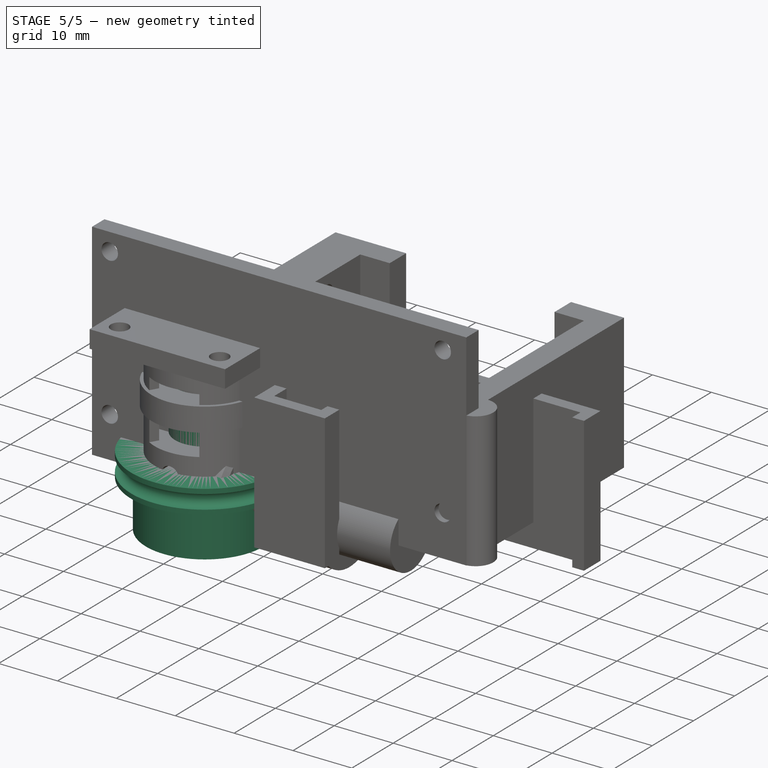
[diagram: stage 5 of 5 — iso view after this stage's code; geometry added in this stage tinted green]
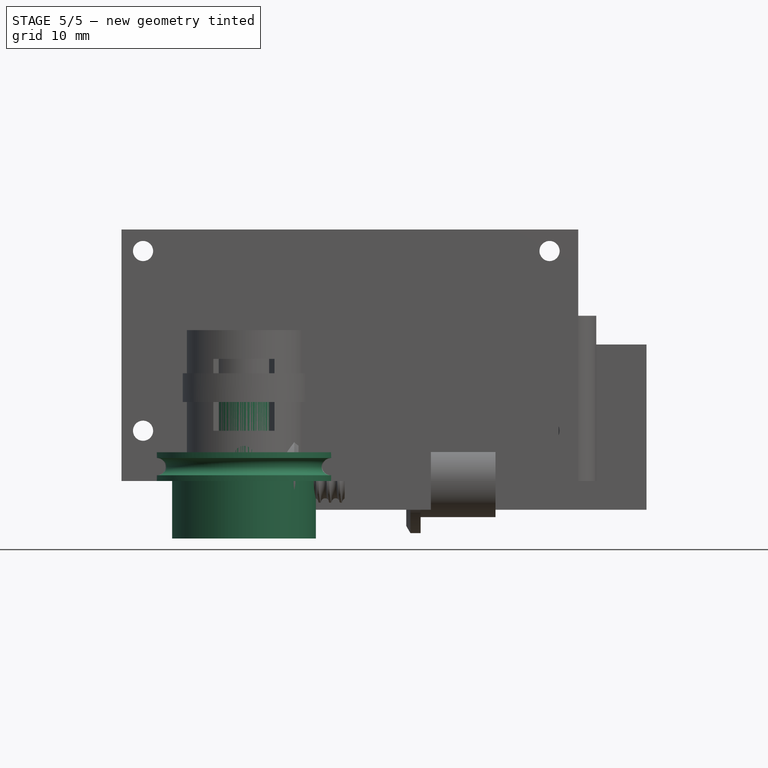
[diagram: stage 5 of 5 — front view after this stage's code; geometry added in this stage tinted green]
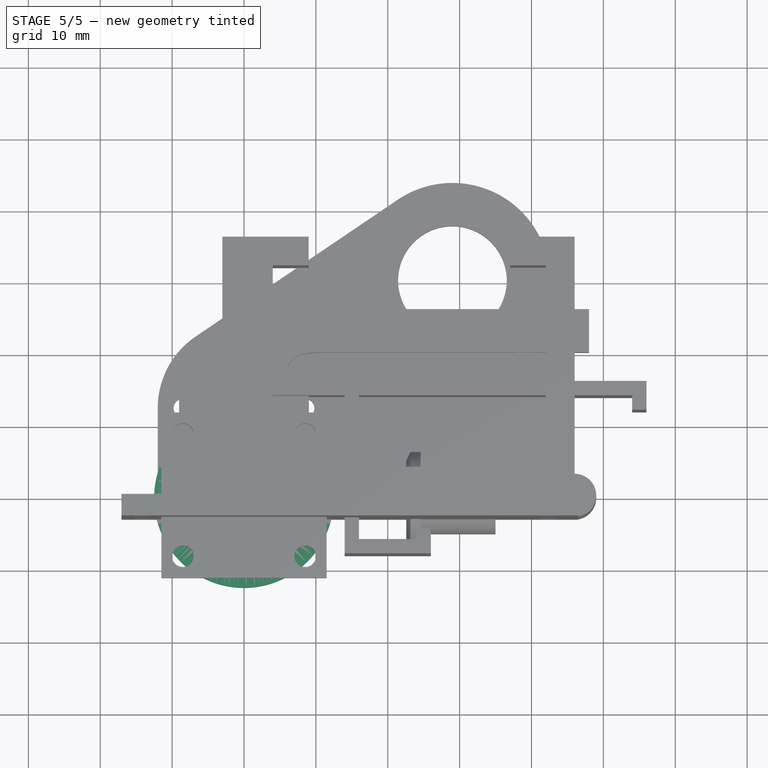
[diagram: stage 5 of 5 — top view after this stage's code; geometry added in this stage tinted green]
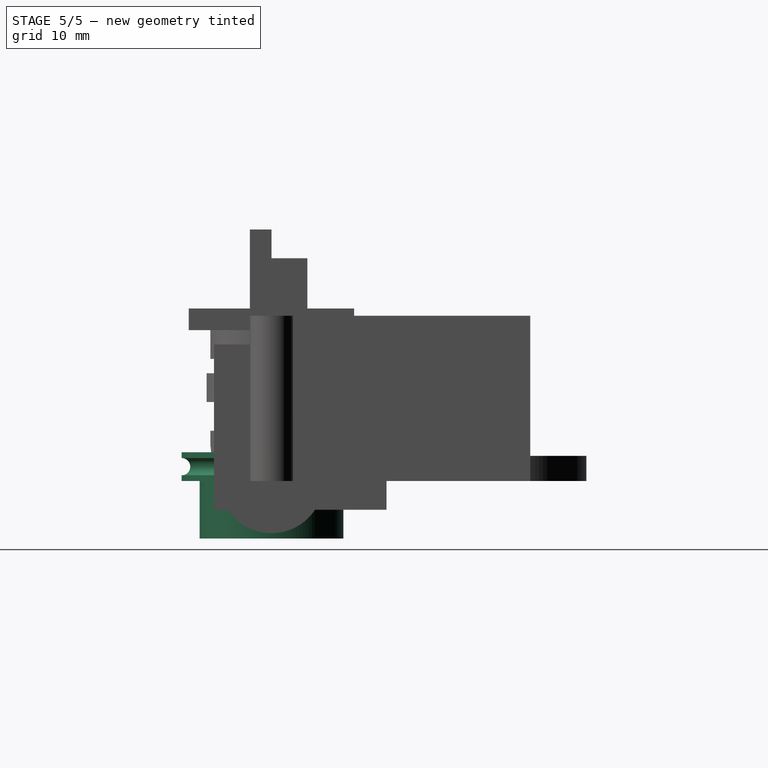
[diagram: stage 5 of 5 — right view after this stage's code; geometry added in this stage tinted green]
FEATURE [Sketcher::SketchObject] Sketch001
  ArcFitTolerance = 1e-06
  AttachmentSupport = -> [XY_Plane001]
  FullyConstrained = true
  MakeInternals = false
  MapMode = 5
  sketch-geometry (4):
    g0: LineSegment StartX=-7.5 StartY=0 StartZ=0 EndX=7.5 EndY=0 EndZ=0
    g1: LineSegment StartX=7.5 StartY=0 StartZ=0 EndX=7.5 EndY=10 EndZ=0
    g2: LineSegment StartX=7.5 StartY=10 StartZ=0 EndX=-7.5 EndY=10 EndZ=0
    g3: LineSegment StartX=-7.5 StartY=10 StartZ=0 EndX=-7.5 EndY=0 EndZ=0
  constraints (11):
    c: Coincident(g0,g1)
    c: Coincident(g1,g2)
    c: Coincident(g2,g3)
    c: Coincident(g3,g0)
    c: Horizontal(g0)
    c: Vertical(g1)
    c: Vertical(g3)
    c: PointOnObject(g0,g-1)
    c: DistanceX(g2,g2) = 15
    c: DistanceY(g3,g3) = 10
    c: Symmetric(g2,g1,g-2)
FEATURE [PartDesign::Pad] Pad001
  Direction = (0,0,1)
  Length = 1.5
  Length2 = 10
  Profile = -> Sketch001
  ReferenceAxis = -> Sketch001 [N_Axis]
  Suppressed = false
  Type = 0
FEATURE [Sketcher::SketchObject] Sketch002
  ArcFitTolerance = 1e-06
  AttachmentSupport = -> [XY_Plane001]
  FullyConstrained = true
  MakeInternals = false
  MapMode = 5
  expr: Constraints[10] = VarSet.topRollerEquipmentBaseHeight
  expr: Constraints[9] = VarSet.topRollerEquipmentBaseWidth
  sketch-geometry (4):
    g0: LineSegment StartX=-5 StartY=0 StartZ=0 EndX=-5 EndY=-5 EndZ=0
    g1: LineSegment StartX=-5 StartY=-5 StartZ=0 EndX=5 EndY=-5 EndZ=0
    g2: LineSegment StartX=5 StartY=-5 StartZ=0 EndX=5 EndY=0 EndZ=0
    g3: LineSegment StartX=5 StartY=0 StartZ=0 EndX=-5 EndY=0 EndZ=0
  constraints (11):
    c: Coincident(g0,g1)
    c: Coincident(g1,g2)
    c: Coincident(g2,g3)
    c: Coincident(g3,g0)
    c: Vertical(g0)
    c: Vertical(g2)
    c: Horizontal(g1)
    c: PointOnObject(g0,g-1)
    c: Symmetric(g0,g2,g-2)
    c: DistanceX(g1,g1) = 10
    c: DistanceY(g0,g0) = 5
FEATURE [PartDesign::Body] Body001  label="TopPart"
  AllowCompound = false
  Group = -> [Sketch001,Pad001,Sketch002]
  Origin = -> Origin001
  Tip = -> Pad001
FEATURE [Sketcher::SketchObject] Sketch003
  ArcFitTolerance = 1e-06
  AttachmentSupport = -> [XY_Plane002]
  FullyConstrained = true
  MakeInternals = false
  MapMode = 5
  expr: Constraints[1] = VarSet.topRodR
  sketch-geometry (1):
    g0: Circle CenterX=0 CenterY=0 CenterZ=0 NormalX=0 NormalY=0 NormalZ=1 AngleXU=0 Radius=5.03
  constraints (2):
    c: Coincident(g0,g-1)
    c: Radius(g0) = 5.03
FEATURE [PartDesign::Pad] Pad002
  Direction = (0,0,1)
  Length = 15
  Length2 = 10
  Profile = -> Sketch003
  ReferenceAxis = -> Sketch003 [N_Axis]
  Suppressed = false
  Type = 0
  expr: Length = VarSet.topRollerTotalWidth
FEATURE [PartDesign::Body] Body002  label="Body002topRod"
  AllowCompound = false
  Group = -> [Sketch003,Pad002]
  Origin = -> Origin002
  Tip = -> Pad002
FEATURE [Sketcher::SketchObject] Sketch004
  ArcFitTolerance = 1e-06
  AttachmentSupport = -> [XY_Plane003]
  FullyConstrained = true
  MakeInternals = false
  MapMode = 5
  expr: Constraints[0] = VarSet.topRodR + VarSet.topThickNess
  expr: Constraints[11] = VarSet.topRodR + VarSet.veryTightMargin
  expr: Constraints[13] = VarSet.topRollerR + VarSet.topRollerSep + VarSet.topRollerThickness
  sketch-geometry (5):
    g0: ArcOfCircle CenterX=0 CenterY=0 CenterZ=0 NormalX=0 NormalY=0 NormalZ=1 AngleXU=0 Radius=9.03 StartAngle=3.14159 EndAngle=6.28319
    g1: LineSegment StartX=9.03 StartY=-2.2e-15 StartZ=0 EndX=9.03 EndY=16 EndZ=0
    g2: LineSegment StartX=9.03 StartY=16 StartZ=0 EndX=-9.03 EndY=16 EndZ=0
    g3: LineSegment StartX=-9.03 StartY=16 StartZ=0 EndX=-9.03 EndY=1.8e-15 EndZ=0
    g4: Circle CenterX=0 CenterY=0 CenterZ=0 NormalX=0 NormalY=0 NormalZ=1 AngleXU=0 Radius=5.031
  constraints (14):
    c: Radius(g0) = 9.03
    c: Coincident(g1,g2)
    c: Coincident(g2,g3)
    c: Horizontal(g2)
    c: Vertical(g1)
    c: Vertical(g3)
    c: PointOnObject(g3,g-1)
    c: PointOnObject(g0,g-1)
    c: Coincident(g1,g0)
    c: Coincident(g0,g3)
    c: Coincident(g4,g0)
    c: Radius(g4) = 5.031
    c: Coincident(g0,g-1)
    c: DistanceY(g0,g1) = 16
FEATURE [Sketcher::SketchObject] Sketch005
  ArcFitTolerance = 1e-06
  AttachmentSupport = -> [XY_Plane004]
  FullyConstrained = true
  MakeInternals = false
  MapMode = 5
  expr: Constraints[1] = VarSet.outerBearingR + VarSet.veryTightMargin
  expr: Constraints[3] = VarSet.topRollerR
  sketch-geometry (2):
    g0: Circle CenterX=0 CenterY=0 CenterZ=0 NormalX=0 NormalY=0 NormalZ=1 AngleXU=0 Radius=7.501
    g1: Circle CenterX=0 CenterY=0 CenterZ=0 NormalX=0 NormalY=0 NormalZ=1 AngleXU=0 Radius=12.5
  constraints (4):
    c: Coincident(g0,g-1)
    c: Radius(g0) = 7.501
    c: Coincident(g1,g0)
    c: Radius(g1) = 12.5
FEATURE [PartDesign::Pad] Pad004
  Direction = (0,0,1)
  Length = 4
  Length2 = 10
  Profile = -> Sketch005
  ReferenceAxis = -> Sketch005 [N_Axis]
  Suppressed = false
  Type = 0
  expr: Length = VarSet.topRollerWidth
FEATURE [Sketcher::SketchObject] Sketch006
  ArcFitTolerance = 1e-06
  AttachmentSupport = -> [YZ_Plane004]
  FullyConstrained = true
  MakeInternals = false
  MapMode = 5
  Placement = pos=(0,0,0) rot=(0.57735,0.57735,0.57735;2.0944rad)
  expr: Constraints[1] = VarSet.topRollerR
  expr: Constraints[6] = VarSet.topRollerWidth / 2
  sketch-geometry (2):
    g0: ArcOfCircle CenterX=12.5 CenterY=2 CenterZ=0 NormalX=0 NormalY=0 NormalZ=1 AngleXU=0 Radius=1.2 StartAngle=1.5708 EndAngle=4.71239
    g1: LineSegment StartX=12.5 StartY=3.2 StartZ=0 EndX=12.5 EndY=0.8 EndZ=0
  constraints (7):
    c: Vertical(g1)
    c: DistanceX(g-1,g1) = 12.5
    c: PointOnObject(g0,g1)
    c: Coincident(g0,g1)
    c: Coincident(g0,g1)
    c: Radius(g0) = 1.2
    c: DistanceY(g-1,g0) = 2
FEATURE [PartDesign::Groove] Groove
  Angle = 360
  Angle2 = 60
  Axis = (0,0,1)
  Base = (0,0,0)
  BaseFeature = -> Pad004
  Profile = -> Sketch006
  ReferenceAxis = -> Sketch006 [V_Axis]
  Suppressed = false
  Type = 0
FEATURE [Sketcher::SketchObject] Sketch009
  ArcFitTolerance = 1e-06
  AttachmentSupport = -> [XY_Plane005]
  FullyConstrained = true
  MakeInternals = false
  MapMode = 5
  sketch-geometry (1):
    g0: Circle CenterX=0 CenterY=0 CenterZ=0 NormalX=0 NormalY=0 NormalZ=1 AngleXU=0 Radius=10
  constraints (2):
    c: Coincident(g0,g-1)
    c: Radius(g0) = 10
FEATURE [PartDesign::Pad] Pad007
  Direction = (0,0,1)
  Length = 8
  Length2 = 10
  Profile = -> Sketch009
  ReferenceAxis = -> Sketch009 [N_Axis]
  Reversed = true
  Suppressed = false
  Type = 0
  expr: Length = VarSet.tightenerBaseHeight
FEATURE [Sketcher::SketchObject] Sketch010
  ArcFitTolerance = 1e-06
  AttachmentSupport = -> [XY_Plane005]
  FullyConstrained = true
  MakeInternals = false
  MapMode = 5
  expr: Constraints[1] = VarSet.tighenerRodR
  sketch-geometry (1):
    g0: Circle CenterX=0 CenterY=0 CenterZ=0 NormalX=0 NormalY=0 NormalZ=1 AngleXU=0 Radius=5
  constraints (2):
    c: Coincident(g0,g-1)
    c: Radius(g0) = 5
FEATURE [PartDesign::Pad] Pad008
  BaseFeature = -> Pad007
  Direction = (0,0,1)
  Length = 19
  Length2 = 10
  Profile = -> Sketch010
  ReferenceAxis = -> Sketch010 [N_Axis]
  Suppressed = false
  Type = 0
  expr: Length = VarSet.tightenerBodyLen
FEATURE [Sketcher::SketchObject] Sketch011
  ArcFitTolerance = 1e-06
  AttachmentSupport = -> [YZ_Plane005]
  FullyConstrained = true
  MakeInternals = false
  MapMode = 5
  Placement = pos=(0,0,0) rot=(0.57735,0.57735,0.57735;2.0944rad)
  expr: Constraints[1] = VarSet.tightenerOpeningCenter
  sketch-geometry (1):
    g0: Circle CenterX=0 CenterY=12 CenterZ=0 NormalX=0 NormalY=0 NormalZ=1 AngleXU=0 Radius=2
  constraints (3):
    c: PointOnObject(g0,g-2)
    c: DistanceY(g-1,g0) = 12
    c: Radius(g0) = 2
FEATURE [PartDesign::Pocket] Pocket001
  BaseFeature = -> Pad008
  Direction = (-1,0,0)
  Length = 5
  Length2 = 5
  Midplane = true
  Profile = -> Sketch011
  ReferenceAxis = -> Sketch011 [N_Axis]
  Suppressed = false
  Type = 1
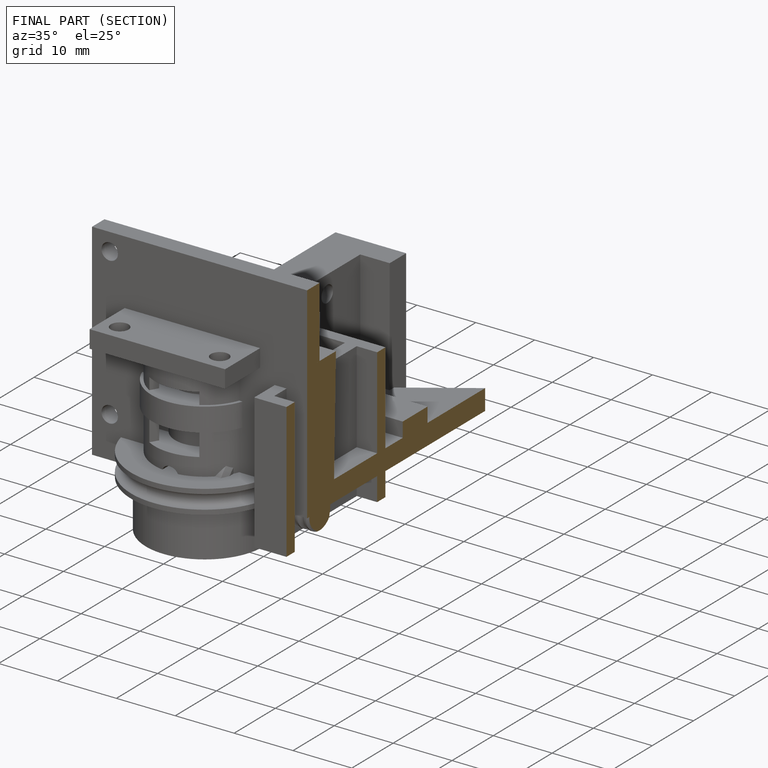
[diagram: finished part — half-section view (interior)]
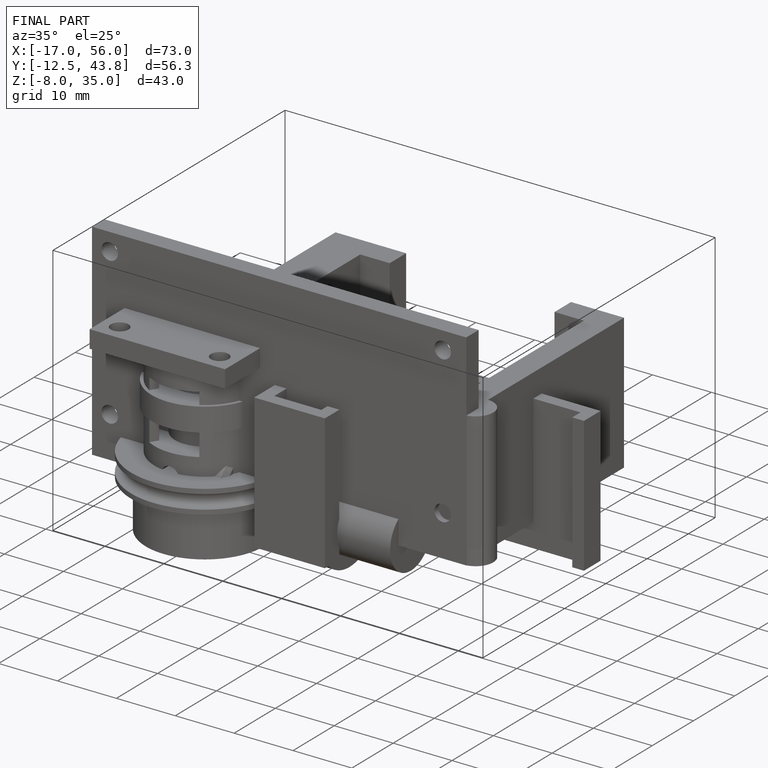
[diagram: finished part — iso view with bounding-box wireframe]
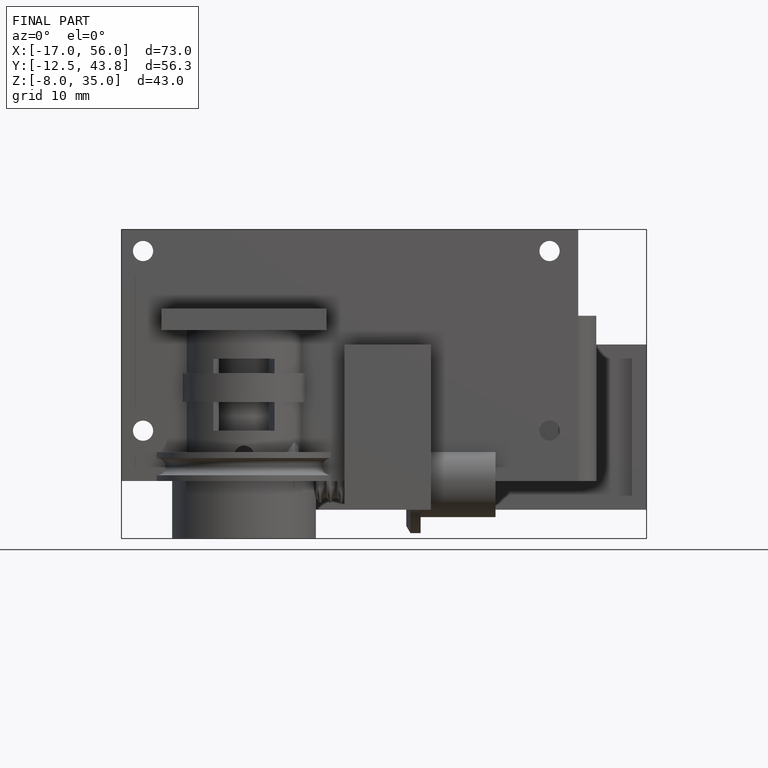
[diagram: finished part — front view with bounding-box wireframe]
